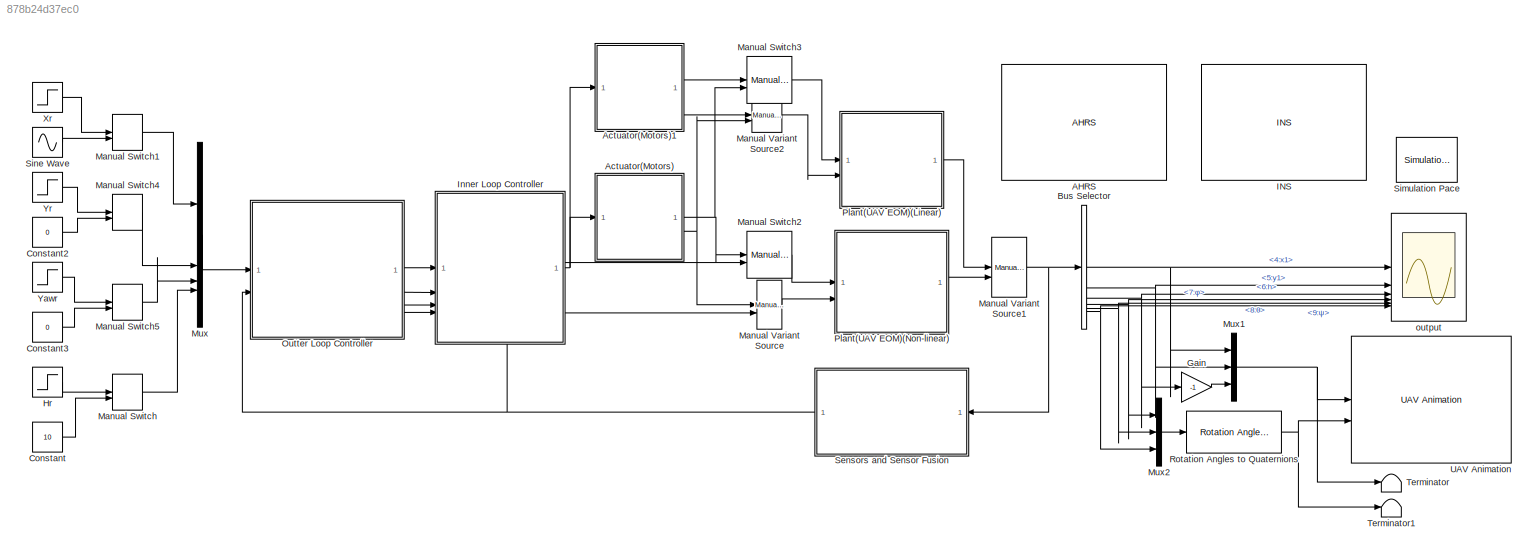
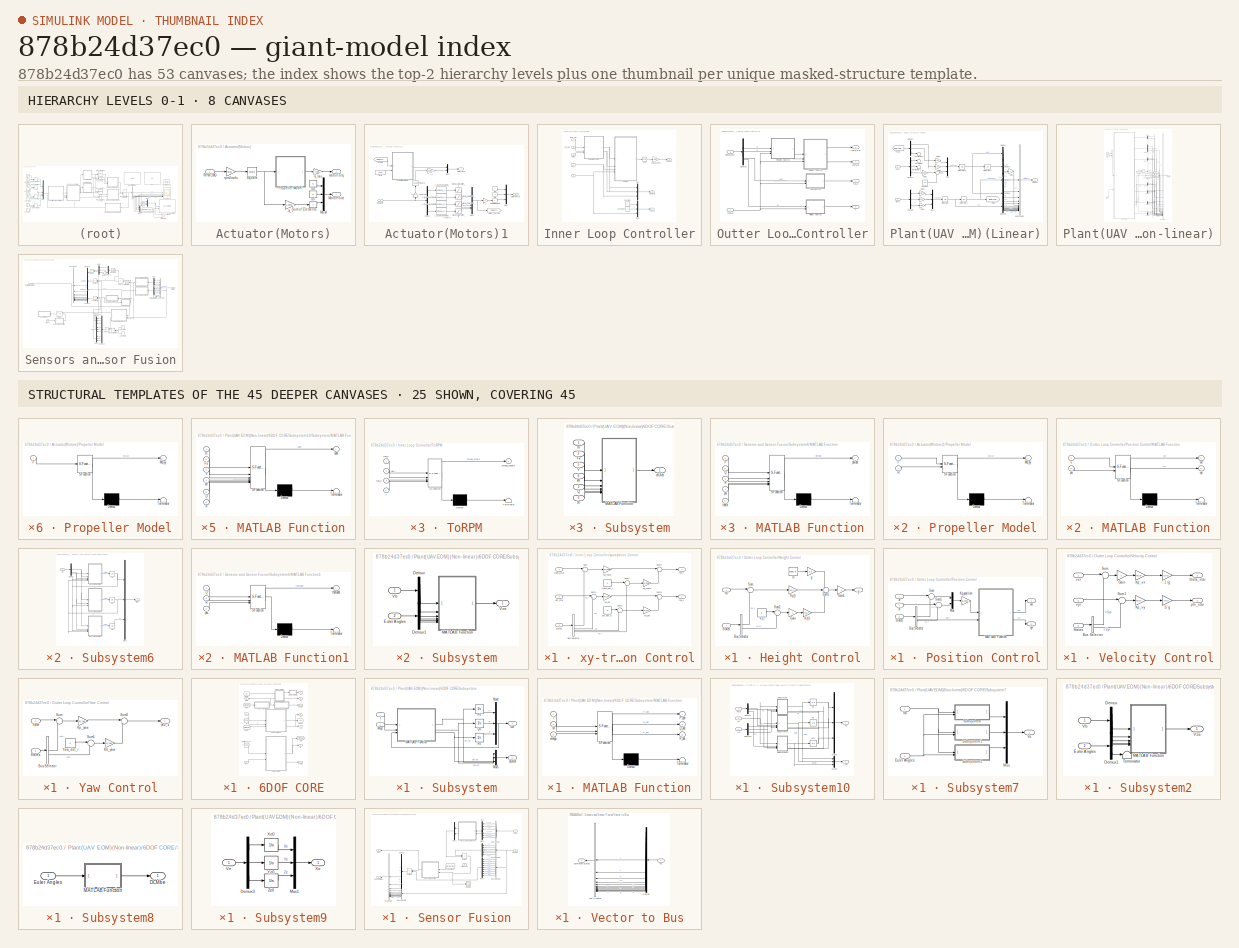
[diagram: thumbnail index - top-2 hierarchy levels (8 canvases) + 25 structural-template representatives of the remaining 45 canvases]
MODEL slx_878b24d37ec0
KIND model
CONFIG AbsTol = auto
CONFIG EnableMultiTasking = off
CONFIG FixedStep = 0.005
CONFIG MaxStep = auto
CONFIG MinStep = auto
CONFIG RelTol = 1e-3
CONFIG SampleTimeConstraint = Unconstrained
CONFIG SolverName = ode4
CONFIG StartTime = 0.0
CONFIG StopTime = 120
BLOCK [Reference] AHRS  REF=mspfiltlib/AHRS
  Commented = on
  SourceBlock = mspfiltlib/AHRS
  SourceType = fusion.simulink.ahrsfilter
BLOCK [SubSystem] Actuator(Motors)
  NameLocation = top
BLOCK [Gain] Actuator(Motors)/-k_T
  Gain = -1.097e-5
BLOCK [Constant] Actuator(Motors)/D4
  Value = 0
BLOCK [Constant] Actuator(Motors)/D5
  Value = 0
BLOCK [Outport] Actuator(Motors)/MotorForce
BLOCK [Mux] Actuator(Motors)/Mux4
  DisplayOption = bar
  Inputs = 3
BLOCK [SubSystem] Actuator(Motors)/Propeller Model
  ErrorFcn = Stateflow.Translate.translate
  PermitHierarchicalResolution = ExplicitOnly
  SFBlockType = MATLAB Function
  TreatAsAtomicUnit = on
BLOCK [Demux] Actuator(Motors)/Propeller Model/ Demux 
  Outputs = 1
BLOCK [S-Function] Actuator(Motors)/Propeller Model/ SFunction 
  EnableBusSupport = on
  FunctionName = sf_sfun
  PortCounts = [1 2]
  SFcnIsStateOwnerBlock = off
  SFunctionDeploymentMode = off
  Tag = Stateflow S-Function 7
BLOCK [Terminator] Actuator(Motors)/Propeller Model/ Terminator 
BLOCK [Inport] Actuator(Motors)/Propeller Model/F
BLOCK [Outport] Actuator(Motors)/Propeller Model/Mb_xy
BLOCK [Inport] Actuator(Motors)/RPM CMD
BLOCK [Math] Actuator(Motors)/Square
  Operator = square
BLOCK [Sum] Actuator(Motors)/Sum of Elements
  IconShape = rectangular
  Inputs = +
BLOCK [Gain] Actuator(Motors)/k_tau
  Gain = 1.779e-07
BLOCK [Outport] Actuator(Motors)/motorTorq
  Port = 2
BLOCK [Gain] Actuator(Motors)/rpm2rads
  Gain = pi/30
BLOCK [SubSystem] Actuator(Motors)1
BLOCK [Lookup_n-D] Actuator(Motors)1/1-D Lookup Table5
  BeginIndexSearchUsingPreviousIndexResult = on
  BreakpointsForDimension1 = [2847\n3689\n4585\n5400\n6400\n7000\n7800\n8222\n9300\n10700]
  InputPortMap = u0
  InternalRulePriority = Speed
  NumberOfTableDimensions = 1
  RndMeth = Simplest
  Table = [0.6664\n1.4308\n2.3422\n3.3418\n4.9098\n5.929\n7.399\n7.6244\n10.976\n13.72]
BLOCK [Lookup_n-D] Actuator(Motors)1/1-D Lookup Table6
  BeginIndexSearchUsingPreviousIndexResult = on
  BreakpointsForDimension1 = [2847\n3689\n4585\n5400\n6400\n7000\n7800\n8222\n9300\n10700]
  InputPortMap = u0
  InternalRulePriority = Speed
  NumberOfTableDimensions = 1
  RndMeth = Simplest
  Table = [0.6664\n1.4308\n2.3422\n3.3418\n4.9098\n5.929\n7.399\n7.6244\n10.976\n13.72]
BLOCK [Lookup_n-D] Actuator(Motors)1/1-D Lookup Table7
  BeginIndexSearchUsingPreviousIndexResult = on
  BreakpointsForDimension1 = [2847\n3689\n4585\n5400\n6400\n7000\n7800\n8222\n9300\n10700]
  InputPortMap = u0
  InternalRulePriority = Speed
  NumberOfTableDimensions = 1
  RndMeth = Simplest
  Table = [0.6664\n1.4308\n2.3422\n3.3418\n4.9098\n5.929\n7.399\n7.6244\n10.976\n13.72]
BLOCK [Lookup_n-D] Actuator(Motors)1/1-D Lookup Table8
  BeginIndexSearchUsingPreviousIndexResult = on
  BreakpointsForDimension1 = [2847\n3689\n4585\n5400\n6400\n7000\n7800\n8222\n9300\n10700]
  InputPortMap = u0
  InternalRulePriority = Speed
  NumberOfTableDimensions = 1
  RndMeth = Simplest
  Table = [0.6664\n1.4308\n2.3422\n3.3418\n4.9098\n5.929\n7.399\n7.6244\n10.976\n13.72]
BLOCK [Constant] Actuator(Motors)1/D4
  Value = 0
BLOCK [Constant] Actuator(Motors)1/D5
  Value = 0
BLOCK [Demux] Actuator(Motors)1/Demux
BLOCK [From] Actuator(Motors)1/From1
  GotoTag = MotorsForce
BLOCK [Outport] Actuator(Motors)1/MotorForce
BLOCK [Goto] Actuator(Motors)1/Motor_Force[4]
  GotoTag = MotorsForce
BLOCK [Mux] Actuator(Motors)1/Mux1
  DisplayOption = bar
BLOCK [Mux] Actuator(Motors)1/Mux3
  DisplayOption = bar
  Inputs = [2 1]
BLOCK [Mux] Actuator(Motors)1/Mux4
  DisplayOption = bar
  Inputs = 3
BLOCK [SubSystem] Actuator(Motors)1/Propeller Model
  ErrorFcn = Stateflow.Translate.translate
  PermitHierarchicalResolution = ExplicitOnly
  SFBlockType = MATLAB Function
  TreatAsAtomicUnit = on
BLOCK [Demux] Actuator(Motors)1/Propeller Model/ Demux 
  Outputs = 1
BLOCK [S-Function] Actuator(Motors)1/Propeller Model/ SFunction 
  EnableBusSupport = on
  FunctionName = sf_sfun
  PortCounts = [2 2]
  SFcnIsStateOwnerBlock = off
  SFunctionDeploymentMode = off
  Tag = Stateflow S-Function 5
BLOCK [Terminator] Actuator(Motors)1/Propeller Model/ Terminator 
BLOCK [Inport] Actuator(Motors)1/Propeller Model/F
BLOCK [Outport] Actuator(Motors)1/Propeller Model/Mb_xy
BLOCK [Inport] Actuator(Motors)1/Propeller Model/R
  Port = 2
BLOCK [Constant] Actuator(Motors)1/R(m)
  Value = 0.205
BLOCK [Inport] Actuator(Motors)1/RPM CMD
BLOCK [Saturate] Actuator(Motors)1/Signal_Saturation_5
  LowerLimit = 0
  UpperLimit = 1.4*9.8
BLOCK [Saturate] Actuator(Motors)1/Signal_Saturation_6
  LowerLimit = 0
  UpperLimit = 1.4*9.8
BLOCK [Saturate] Actuator(Motors)1/Signal_Saturation_7
  LowerLimit = 0
  UpperLimit = 1.4*9.8
BLOCK [Saturate] Actuator(Motors)1/Signal_Saturation_8
  LowerLimit = 0
  UpperLimit = 1.4*9.8
BLOCK [Math] Actuator(Motors)1/Square
  NameLocation = right
  Operator = square
BLOCK [Sum] Actuator(Motors)1/Sum of Elements
  IconShape = rectangular
  Inputs = +
BLOCK [Outport] Actuator(Motors)1/motorTorq
  Port = 2
BLOCK [Gain] Actuator(Motors)1/r
  Gain = -1
BLOCK [Gain] Actuator(Motors)1/r1
  Gain = 1.779e-07*[-1 -1 1 1]
  Multiplication = Matrix(K*u)
BLOCK [Gain] Actuator(Motors)1/rpm2rads
  Gain = 0.104719755119660
  NameLocation = right
BLOCK [BusSelector] Bus Selector
  OutputSignals = 4:x1,5:y1,6:h,7:φ,8:θ,9:ψ
BLOCK [Constant] Constant
  Value = 10
BLOCK [Constant] Constant2
  Value = 0
BLOCK [Constant] Constant3
  Value = 0
BLOCK [Gain] Gain
  Gain = -1
BLOCK [Step] Hr
  After = 20
  SampleTime = 0
  Time = 0
BLOCK [Reference] INS  REF=sensorinslib/INS
  Commented = on
  LibrarySourceBlock = uavsimlib/INS
  SourceBlock = sensorinslib/INS
  SourceType = fusion.internal.simulink.insSensor
BLOCK [SubSystem] Inner Loop Controller
  PortSchema = {"entries":[{"content":{"sides":[{"content":{"connectorIds":["In1","In2","In3","In4"]},"type":"ConnectorPlacement.EquallySpacedRectSide","uuid":"3024e14a-e42b-4ece-95b6-8188e577f7ea"},{"content":{"connectorIds":["Out1","Out2","Out3"],"side":"RIGHT"},"type":"ConnectorPlacement.EquallySpacedRectSide","uuid":"28791f10-00d9-435c-9b3a-62150bd300bc"},{"content":{"connectorIds":[],"side":"TOP"},"type":"C...<+421ch>
BLOCK [Constant] Inner Loop Controller/Constant
  Value = 0
BLOCK [Constant] Inner Loop Controller/Constant1
  Value = 0
BLOCK [Outport] Inner Loop Controller/Forces
  Port = 2
BLOCK [Outport] Inner Loop Controller/Moments
  Port = 3
BLOCK [Mux] Inner Loop Controller/Mux
  DisplayOption = bar
  Inputs = 3
BLOCK [Mux] Inner Loop Controller/Mux1
  DisplayOption = bar
  Inputs = 3
BLOCK [Outport] Inner Loop Controller/Rotor RPM
BLOCK [Sqrt] Inner Loop Controller/Sqrt
BLOCK [Inport] Inner Loop Controller/States
  Port = 5
BLOCK [Inport] Inner Loop Controller/T
  Port = 2
BLOCK [SubSystem] Inner Loop Controller/ToRPM
  ErrorFcn = Stateflow.Translate.translate
  PermitHierarchicalResolution = ExplicitOnly
  SFBlockType = MATLAB Function
  TreatAsAtomicUnit = on
BLOCK [Demux] Inner Loop Controller/ToRPM/ Demux 
  Outputs = 1
BLOCK [S-Function] Inner Loop Controller/ToRPM/ SFunction 
  EnableBusSupport = on
  FunctionName = sf_sfun
  PortCounts = [4 2]
  SFcnIsStateOwnerBlock = off
  SFunctionDeploymentMode = off
  Tag = Stateflow S-Function 3
BLOCK [Terminator] Inner Loop Controller/ToRPM/ Terminator 
BLOCK [Inport] Inner Loop Controller/ToRPM/T
  Port = 4
BLOCK [Outport] Inner Loop Controller/ToRPM/omega_square
BLOCK [Inport] Inner Loop Controller/ToRPM/tau_x
BLOCK [Inport] Inner Loop Controller/ToRPM/tau_y
  Port = 2
BLOCK [Inport] Inner Loop Controller/ToRPM/tau_z
  Port = 3
BLOCK [Gain] Inner Loop Controller/omega2RPM
  Gain = 30/pi
BLOCK [Inport] Inner Loop Controller/phi_star
  Port = 4
BLOCK [Inport] Inner Loop Controller/tau_z
BLOCK [Inport] Inner Loop Controller/theta_star
  Port = 3
BLOCK [SubSystem] Inner Loop Controller/xy-traslation Control
BLOCK [BusSelector] Inner Loop Controller/xy-traslation Control/Bus Selector
  OutputSignals = θ,φ,P,Q
BLOCK [Gain] Inner Loop Controller/xy-traslation Control/Kd_phi
  Gain = kd_phi
BLOCK [Gain] Inner Loop Controller/xy-traslation Control/Kd_theta
  Gain = kd_theta
BLOCK [Gain] Inner Loop Controller/xy-traslation Control/Kp_phi
  Gain = kp_phi
BLOCK [Gain] Inner Loop Controller/xy-traslation Control/Kp_theta
  Gain = kp_theta
BLOCK [Inport] Inner Loop Controller/xy-traslation Control/States
  Port = 3
BLOCK [Sum] Inner Loop Controller/xy-traslation Control/Sum
  Inputs = |+-
BLOCK [Sum] Inner Loop Controller/xy-traslation Control/Sum1
  Inputs = |+-
BLOCK [Sum] Inner Loop Controller/xy-traslation Control/Sum2
  Inputs = |+-
BLOCK [Sum] Inner Loop Controller/xy-traslation Control/Sum3
  Inputs = |+-
BLOCK [Sum] Inner Loop Controller/xy-traslation Control/Sum4
  Inputs = |++
BLOCK [Sum] Inner Loop Controller/xy-traslation Control/Sum5
  Inputs = |++
BLOCK [Constant] Inner Loop Controller/xy-traslation Control/phi_dot_r1
  Value = 0
BLOCK [Inport] Inner Loop Controller/xy-traslation Control/phi_star
  Port = 2
BLOCK [Outport] Inner Loop Controller/xy-traslation Control/tau_x
BLOCK [Outport] Inner Loop Controller/xy-traslation Control/tau_y
  Port = 2
BLOCK [Constant] Inner Loop Controller/xy-traslation Control/theta_dot_r
  Value = 0
BLOCK [Inport] Inner Loop Controller/xy-traslation Control/theta_star
BLOCK [ManualSwitch] Manual Switch
  CurrentSetting = 0
BLOCK [ManualSwitch] Manual Switch1
  CurrentSetting = 0
BLOCK [ManualSwitch] Manual Switch2
BLOCK [ManualSwitch] Manual Switch3
  CurrentSetting = 0
BLOCK [ManualSwitch] Manual Switch4
  CurrentSetting = 0
BLOCK [ManualSwitch] Manual Switch5
  CurrentSetting = 0
BLOCK [Reference] Manual Variant Source  REF=simulink/Signal
Routing/Manual
Variant Source
  SourceBlock = simulink/Signal\nRouting/Manual\nVariant Source
  SourceType = ManualVariantSource
BLOCK [Reference] Manual Variant Source1  REF=simulink/Signal
Routing/Manual
Variant Source
  SourceBlock = simulink/Signal\nRouting/Manual\nVariant Source
  SourceType = ManualVariantSource
BLOCK [Reference] Manual Variant Source2  REF=simulink/Signal
Routing/Manual
Variant Source
  SourceBlock = simulink/Signal\nRouting/Manual\nVariant Source
  SourceType = ManualVariantSource
BLOCK [Mux] Mux
  DisplayOption = bar
BLOCK [Mux] Mux1
  DisplayOption = bar
  Inputs = 3
BLOCK [Mux] Mux2
  DisplayOption = bar
  Inputs = 3
BLOCK [SubSystem] Outter Loop Controller
BLOCK [Demux] Outter Loop Controller/Demux
BLOCK [SubSystem] Outter Loop Controller/Height Control
BLOCK [BusSelector] Outter Loop Controller/Height Control/Bus Selector
  OutputSignals = H,Vz
BLOCK [Gain] Outter Loop Controller/Height Control/Gain
  Gain = -1
BLOCK [Gain] Outter Loop Controller/Height Control/Gain1
  Gain = -1
BLOCK [Inport] Outter Loop Controller/Height Control/Hr
BLOCK [Gain] Outter Loop Controller/Height Control/Kd_h
  Gain = kd_h
BLOCK [Gain] Outter Loop Controller/Height Control/Kp_h
  Gain = kp_h
BLOCK [Inport] Outter Loop Controller/Height Control/States
  Port = 2
BLOCK [Sum] Outter Loop Controller/Height Control/Sum
  Inputs = |+-
BLOCK [Sum] Outter Loop Controller/Height Control/Sum1
  Inputs = +++
BLOCK [Sum] Outter Loop Controller/Height Control/Sum2
  Inputs = |+-
BLOCK [Outport] Outter Loop Controller/Height Control/T
BLOCK [Constant] Outter Loop Controller/Height Control/Vz_r
  Value = 0
BLOCK [Gain] Outter Loop Controller/Height Control/g
  Gain = 9.8
BLOCK [Constant] Outter Loop Controller/Height Control/m
  Value = Vehicle.Airframe.mass
BLOCK [SubSystem] Outter Loop Controller/Position Control
BLOCK [BusSelector] Outter Loop Controller/Position Control/Bus Selector
  OutputSignals = X,Y,ψ
BLOCK [Gain] Outter Loop Controller/Position Control/Kp_position
  Gain = kp_position
BLOCK [SubSystem] Outter Loop Controller/Position Control/MATLAB Function
  ErrorFcn = Stateflow.Translate.translate
  PermitHierarchicalResolution = ExplicitOnly
  SFBlockType = MATLAB Function
  TreatAsAtomicUnit = on
BLOCK [Demux] Outter Loop Controller/Position Control/MATLAB Function/ Demux 
  Outputs = 1
BLOCK [S-Function] Outter Loop Controller/Position Control/MATLAB Function/ SFunction 
  EnableBusSupport = on
  FunctionName = sf_sfun
  PortCounts = [2 3]
  SFcnIsStateOwnerBlock = off
  SFunctionDeploymentMode = off
  Tag = Stateflow S-Function 1
BLOCK [Terminator] Outter Loop Controller/Position Control/MATLAB Function/ Terminator 
BLOCK [Inport] Outter Loop Controller/Position Control/MATLAB Function/psi
  Port = 2
BLOCK [Inport] Outter Loop Controller/Position Control/MATLAB Function/v
BLOCK [Outport] Outter Loop Controller/Position Control/MATLAB Function/vxr
BLOCK [Outport] Outter Loop Controller/Position Control/MATLAB Function/vyr
  Port = 2
BLOCK [Mux] Outter Loop Controller/Position Control/Mux
  DisplayOption = bar
  Inputs = 2
BLOCK [Inport] Outter Loop Controller/Position Control/States
  Port = 3
BLOCK [Sum] Outter Loop Controller/Position Control/Sum
  Inputs = |+-
BLOCK [Sum] Outter Loop Controller/Position Control/Sum1
  Inputs = |+-
BLOCK [Outport] Outter Loop Controller/Position Control/vxr
BLOCK [Outport] Outter Loop Controller/Position Control/vyr
  Port = 2
BLOCK [Inport] Outter Loop Controller/Position Control/xr
BLOCK [Inport] Outter Loop Controller/Position Control/yr
  Port = 2
BLOCK [Inport] Outter Loop Controller/Reference
BLOCK [Inport] Outter Loop Controller/States
  Port = 2
BLOCK [Outport] Outter Loop Controller/T
  Port = 2
BLOCK [SubSystem] Outter Loop Controller/Velocity Control
BLOCK [Gain] Outter Loop Controller/Velocity Control/1 //g
  Gain = 1/9.8
BLOCK [Gain] Outter Loop Controller/Velocity Control/1// g
  Gain = 1/9.8
BLOCK [BusSelector] Outter Loop Controller/Velocity Control/Bus Selector
  OutputSignals = Vx,Vy
BLOCK [Gain] Outter Loop Controller/Velocity Control/Gain
  Gain = -1
BLOCK [Gain] Outter Loop Controller/Velocity Control/Kp_vx
  Gain = kp_vx
BLOCK [Gain] Outter Loop Controller/Velocity Control/Kp_vy
  Gain = kp_vy
BLOCK [Inport] Outter Loop Controller/Velocity Control/States
  Port = 3
BLOCK [Sum] Outter Loop Controller/Velocity Control/Sum
  Inputs = |+-
BLOCK [Sum] Outter Loop Controller/Velocity Control/Sum1
  Inputs = |+-
BLOCK [Outport] Outter Loop Controller/Velocity Control/phi_star
  Port = 2
BLOCK [Outport] Outter Loop Controller/Velocity Control/theta_star
BLOCK [Inport] Outter Loop Controller/Velocity Control/vxr
BLOCK [Inport] Outter Loop Controller/Velocity Control/vyr
  Port = 2
BLOCK [SubSystem] Outter Loop Controller/Yaw Control
BLOCK [BusSelector] Outter Loop Controller/Yaw Control/Bus Selector
  OutputSignals = ψ,R
BLOCK [Gain] Outter Loop Controller/Yaw Control/Kd_yaw
  Gain = kd_yaw
BLOCK [Gain] Outter Loop Controller/Yaw Control/Kp_yaw
  Gain = kp_yaw
BLOCK [Inport] Outter Loop Controller/Yaw Control/States
  Port = 2
BLOCK [Sum] Outter Loop Controller/Yaw Control/Sum
  Inputs = |+-
BLOCK [Sum] Outter Loop Controller/Yaw Control/Sum1
  Inputs = |+-
BLOCK [Sum] Outter Loop Controller/Yaw Control/Sum2
  Inputs = |++
BLOCK [Constant] Outter Loop Controller/Yaw Control/Yaw_dot_r
  Value = 0
BLOCK [Inport] Outter Loop Controller/Yaw Control/Yawr
BLOCK [Outport] Outter Loop Controller/Yaw Control/tau_z
BLOCK [Outport] Outter Loop Controller/phi_star
  Port = 4
BLOCK [Outport] Outter Loop Controller/tau_z
BLOCK [Outport] Outter Loop Controller/theta_star
  Port = 3
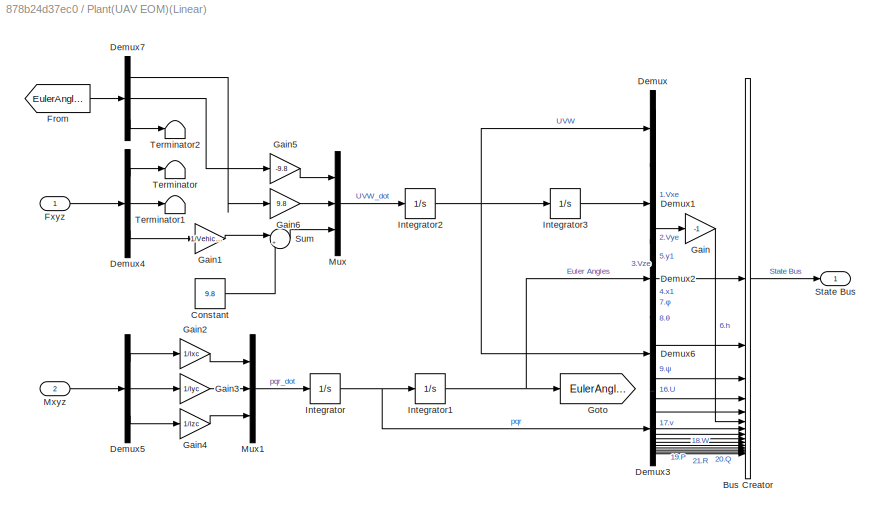
BLOCK [SubSystem] Plant(UAV EOM)(Linear)
BLOCK [BusCreator] Plant(UAV EOM)(Linear)/Bus Creator
  DisplayOption = bar
  InheritFromInputs = on
  Inputs = 15
BLOCK [Constant] Plant(UAV EOM)(Linear)/Constant
  Value = 9.8
BLOCK [Demux] Plant(UAV EOM)(Linear)/Demux
  Outputs = 3
BLOCK [Demux] Plant(UAV EOM)(Linear)/Demux1
  Outputs = 3
BLOCK [Demux] Plant(UAV EOM)(Linear)/Demux2
  Outputs = 3
BLOCK [Demux] Plant(UAV EOM)(Linear)/Demux3
  Outputs = 3
BLOCK [Demux] Plant(UAV EOM)(Linear)/Demux4
  Outputs = 3
BLOCK [Demux] Plant(UAV EOM)(Linear)/Demux5
  Outputs = 3
BLOCK [Demux] Plant(UAV EOM)(Linear)/Demux6
  Outputs = 3
BLOCK [Demux] Plant(UAV EOM)(Linear)/Demux7
  Outputs = 3
BLOCK [From] Plant(UAV EOM)(Linear)/From
  GotoTag = EulerAngles
BLOCK [Inport] Plant(UAV EOM)(Linear)/Fxyz
BLOCK [Gain] Plant(UAV EOM)(Linear)/Gain
  Gain = -1
BLOCK [Gain] Plant(UAV EOM)(Linear)/Gain1
  Gain = 1/Vehicle.Airframe.mass
BLOCK [Gain] Plant(UAV EOM)(Linear)/Gain2
  Gain = 1/Ixc
BLOCK [Gain] Plant(UAV EOM)(Linear)/Gain3
  Gain = 1/Iyc
BLOCK [Gain] Plant(UAV EOM)(Linear)/Gain4
  Gain = 1/Izc
BLOCK [Gain] Plant(UAV EOM)(Linear)/Gain5
  Gain = -9.8
BLOCK [Gain] Plant(UAV EOM)(Linear)/Gain6
  Gain = 9.8
BLOCK [Goto] Plant(UAV EOM)(Linear)/Goto
  GotoTag = EulerAngles
BLOCK [Integrator] Plant(UAV EOM)(Linear)/Integrator
  InitialCondition = [0,0,0]
BLOCK [Integrator] Plant(UAV EOM)(Linear)/Integrator1
  InitialCondition = [0,0,0]
BLOCK [Integrator] Plant(UAV EOM)(Linear)/Integrator2
  InitialCondition = [0,0,0]
BLOCK [Integrator] Plant(UAV EOM)(Linear)/Integrator3
  InitialCondition = [0,0,-10]
BLOCK [Mux] Plant(UAV EOM)(Linear)/Mux
  DisplayOption = bar
  Inputs = 3
BLOCK [Mux] Plant(UAV EOM)(Linear)/Mux1
  DisplayOption = bar
  Inputs = 3
BLOCK [Inport] Plant(UAV EOM)(Linear)/Mxyz
  Port = 2
BLOCK [Outport] Plant(UAV EOM)(Linear)/State Bus
BLOCK [Sum] Plant(UAV EOM)(Linear)/Sum
  Inputs = |++
BLOCK [Terminator] Plant(UAV EOM)(Linear)/Terminator
BLOCK [Terminator] Plant(UAV EOM)(Linear)/Terminator1
BLOCK [Terminator] Plant(UAV EOM)(Linear)/Terminator2
BLOCK [SubSystem] Plant(UAV EOM)(Non-linear)
BLOCK [SubSystem] Plant(UAV EOM)(Non-linear)/6DOF CORE
  NameLocation = top
BLOCK [Outport] Plant(UAV EOM)(Non-linear)/6DOF CORE/AAb
  Port = 8
BLOCK [Outport] Plant(UAV EOM)(Non-linear)/6DOF CORE/DCMbe
  Port = 4
BLOCK [From] Plant(UAV EOM)(Non-linear)/6DOF CORE/From
  GotoTag = omegab
BLOCK [From] Plant(UAV EOM)(Non-linear)/6DOF CORE/From2
  GotoTag = omegab
BLOCK [From] Plant(UAV EOM)(Non-linear)/6DOF CORE/From3
  GotoTag = Vb
BLOCK [Inport] Plant(UAV EOM)(Non-linear)/6DOF CORE/Fxyz
BLOCK [Goto] Plant(UAV EOM)(Non-linear)/6DOF CORE/Goto
  GotoTag = omegab
BLOCK [Goto] Plant(UAV EOM)(Non-linear)/6DOF CORE/Goto1
  GotoTag = Vb
BLOCK [Constant] Plant(UAV EOM)(Non-linear)/6DOF CORE/Inertia Tensor
  Value = Vehicle.Airframe.inertia
  VectorParams1D = off
BLOCK [Inport] Plant(UAV EOM)(Non-linear)/6DOF CORE/Mxyz
  Port = 2
BLOCK [SubSystem] Plant(UAV EOM)(Non-linear)/6DOF CORE/Subsystem
BLOCK [Inport] Plant(UAV EOM)(Non-linear)/6DOF CORE/Subsystem/I
BLOCK [SubSystem] Plant(UAV EOM)(Non-linear)/6DOF CORE/Subsystem/MATLAB Function
  ErrorFcn = Stateflow.Translate.translate
  PermitHierarchicalResolution = ExplicitOnly
  SFBlockType = MATLAB Function
  TreatAsAtomicUnit = on
BLOCK [Demux] Plant(UAV EOM)(Non-linear)/6DOF CORE/Subsystem/MATLAB Function/ Demux 
  Outputs = 1
BLOCK [S-Function] Plant(UAV EOM)(Non-linear)/6DOF CORE/Subsystem/MATLAB Function/ SFunction 
  EnableBusSupport = on
  FunctionName = sf_sfun
  PortCounts = [3 4]
  SFcnIsStateOwnerBlock = off
  SFunctionDeploymentMode = off
  Tag = Stateflow S-Function 4
BLOCK [Terminator] Plant(UAV EOM)(Non-linear)/6DOF CORE/Subsystem/MATLAB Function/ Terminator 
BLOCK [Inport] Plant(UAV EOM)(Non-linear)/6DOF CORE/Subsystem/MATLAB Function/I
BLOCK [Inport] Plant(UAV EOM)(Non-linear)/6DOF CORE/Subsystem/MATLAB Function/M
  Port = 2
BLOCK [Outport] Plant(UAV EOM)(Non-linear)/6DOF CORE/Subsystem/MATLAB Function/P_dot
BLOCK [Outport] Plant(UAV EOM)(Non-linear)/6DOF CORE/Subsystem/MATLAB Function/Q_dot
  Port = 2
BLOCK [Outport] Plant(UAV EOM)(Non-linear)/6DOF CORE/Subsystem/MATLAB Function/R_dot
  Port = 3
BLOCK [Inport] Plant(UAV EOM)(Non-linear)/6DOF CORE/Subsystem/MATLAB Function/omega
  Port = 3
BLOCK [Mux] Plant(UAV EOM)(Non-linear)/6DOF CORE/Subsystem/Mux4
  DisplayOption = bar
  Inputs = 3
BLOCK [Mux] Plant(UAV EOM)(Non-linear)/6DOF CORE/Subsystem/Mux5
  DisplayOption = bar
  Inputs = 3
BLOCK [Inport] Plant(UAV EOM)(Non-linear)/6DOF CORE/Subsystem/Mxyz
  Port = 2
BLOCK [Integrator] Plant(UAV EOM)(Non-linear)/6DOF CORE/Subsystem/P0
BLOCK [Integrator] Plant(UAV EOM)(Non-linear)/6DOF CORE/Subsystem/Q0
BLOCK [Integrator] Plant(UAV EOM)(Non-linear)/6DOF CORE/Subsystem/R0
BLOCK [Outport] Plant(UAV EOM)(Non-linear)/6DOF CORE/Subsystem/dωb//dt
  Port = 2
BLOCK [Outport] Plant(UAV EOM)(Non-linear)/6DOF CORE/Subsystem/ωb
BLOCK [SubSystem] Plant(UAV EOM)(Non-linear)/6DOF CORE/Subsystem10
BLOCK [Outport] Plant(UAV EOM)(Non-linear)/6DOF CORE/Subsystem10/AAb
  Port = 2
BLOCK [Demux] Plant(UAV EOM)(Non-linear)/6DOF CORE/Subsystem10/Demux
  Outputs = 3
BLOCK [Demux] Plant(UAV EOM)(Non-linear)/6DOF CORE/Subsystem10/Demux2
  Outputs = 3
BLOCK [Inport] Plant(UAV EOM)(Non-linear)/6DOF CORE/Subsystem10/Fxyz
BLOCK [Mux] Plant(UAV EOM)(Non-linear)/6DOF CORE/Subsystem10/Mux3
  DisplayOption = bar
  Inputs = 3
BLOCK [Mux] Plant(UAV EOM)(Non-linear)/6DOF CORE/Subsystem10/Mux6
  DisplayOption = bar
  Inputs = 3
BLOCK [SubSystem] Plant(UAV EOM)(Non-linear)/6DOF CORE/Subsystem10/Subsystem
  PortSchema = {"entries":[{"content":{"sides":[{"content":{"connectorIds":["In1","In2","In3","In4"]},"type":"ConnectorPlacement.EquallySpacedRectSide","uuid":"326daed8-e070-42c4-b922-a1cfd1075610"},{"content":{"connectorIds":["Out1","In5","In6"],"side":"RIGHT"},"type":"ConnectorPlacement.EquallySpacedRectSide","uuid":"accd66e9-544e-4c99-a98b-e3a864bc5f81"},{"content":{"connectorIds":[],"side":"TOP"},"type":"Con...<+414ch>
BLOCK [Inport] Plant(UAV EOM)(Non-linear)/6DOF CORE/Subsystem10/Subsystem/Fx
  Port = 2
BLOCK [SubSystem] Plant(UAV EOM)(Non-linear)/6DOF CORE/Subsystem10/Subsystem/MATLAB Function
  ErrorFcn = Stateflow.Translate.translate
  PermitHierarchicalResolution = ExplicitOnly
  SFBlockType = MATLAB Function
  TreatAsAtomicUnit = on
BLOCK [Demux] Plant(UAV EOM)(Non-linear)/6DOF CORE/Subsystem10/Subsystem/MATLAB Function/ Demux 
  Outputs = 1
BLOCK [S-Function] Plant(UAV EOM)(Non-linear)/6DOF CORE/Subsystem10/Subsystem/MATLAB Function/ SFunction 
  EnableBusSupport = on
  FunctionName = sf_sfun
  PortCounts = [6 2]
  SFcnIsStateOwnerBlock = off
  SFunctionDeploymentMode = off
  Tag = Stateflow S-Function 20
BLOCK [Terminator] Plant(UAV EOM)(Non-linear)/6DOF CORE/Subsystem10/Subsystem/MATLAB Function/ Terminator 
BLOCK [Inport] Plant(UAV EOM)(Non-linear)/6DOF CORE/Subsystem10/Subsystem/MATLAB Function/Fx
  Port = 2
BLOCK [Inport] Plant(UAV EOM)(Non-linear)/6DOF CORE/Subsystem10/Subsystem/MATLAB Function/Q
  Port = 5
BLOCK [Inport] Plant(UAV EOM)(Non-linear)/6DOF CORE/Subsystem10/Subsystem/MATLAB Function/R
  Port = 6
BLOCK [Inport] Plant(UAV EOM)(Non-linear)/6DOF CORE/Subsystem10/Subsystem/MATLAB Function/V
  Port = 3
BLOCK [Inport] Plant(UAV EOM)(Non-linear)/6DOF CORE/Subsystem10/Subsystem/MATLAB Function/W
  Port = 4
BLOCK [Inport] Plant(UAV EOM)(Non-linear)/6DOF CORE/Subsystem10/Subsystem/MATLAB Function/m
BLOCK [Outport] Plant(UAV EOM)(Non-linear)/6DOF CORE/Subsystem10/Subsystem/MATLAB Function/udot
BLOCK [Inport] Plant(UAV EOM)(Non-linear)/6DOF CORE/Subsystem10/Subsystem/Q
  Port = 3
BLOCK [Inport] Plant(UAV EOM)(Non-linear)/6DOF CORE/Subsystem10/Subsystem/R
  Port = 4
BLOCK [Inport] Plant(UAV EOM)(Non-linear)/6DOF CORE/Subsystem10/Subsystem/V
  Port = 5
BLOCK [Inport] Plant(UAV EOM)(Non-linear)/6DOF CORE/Subsystem10/Subsystem/W
  Port = 6
BLOCK [Outport] Plant(UAV EOM)(Non-linear)/6DOF CORE/Subsystem10/Subsystem/dU//dt
BLOCK [Inport] Plant(UAV EOM)(Non-linear)/6DOF CORE/Subsystem10/Subsystem/m
BLOCK [SubSystem] Plant(UAV EOM)(Non-linear)/6DOF CORE/Subsystem10/Subsystem1
  PortSchema = {"entries":[{"content":{"sides":[{"content":{"connectorIds":["In1","In2","In3","In4"]},"type":"ConnectorPlacement.EquallySpacedRectSide","uuid":"326daed8-e070-42c4-b922-a1cfd1075610"},{"content":{"connectorIds":["In5","Out1","In6"],"side":"RIGHT"},"type":"ConnectorPlacement.EquallySpacedRectSide","uuid":"accd66e9-544e-4c99-a98b-e3a864bc5f81"},{"content":{"connectorIds":[],"side":"TOP"},"type":"Con...<+414ch>
BLOCK [Inport] Plant(UAV EOM)(Non-linear)/6DOF CORE/Subsystem10/Subsystem1/Fy
  Port = 2
BLOCK [SubSystem] Plant(UAV EOM)(Non-linear)/6DOF CORE/Subsystem10/Subsystem1/MATLAB Function
  ErrorFcn = Stateflow.Translate.translate
  PermitHierarchicalResolution = ExplicitOnly
  SFBlockType = MATLAB Function
  TreatAsAtomicUnit = on
BLOCK [Demux] Plant(UAV EOM)(Non-linear)/6DOF CORE/Subsystem10/Subsystem1/MATLAB Function/ Demux 
  Outputs = 1
BLOCK [S-Function] Plant(UAV EOM)(Non-linear)/6DOF CORE/Subsystem10/Subsystem1/MATLAB Function/ SFunction 
  EnableBusSupport = on
  FunctionName = sf_sfun
  PortCounts = [6 2]
  SFcnIsStateOwnerBlock = off
  SFunctionDeploymentMode = off
  Tag = Stateflow S-Function 21
BLOCK [Terminator] Plant(UAV EOM)(Non-linear)/6DOF CORE/Subsystem10/Subsystem1/MATLAB Function/ Terminator 
BLOCK [Inport] Plant(UAV EOM)(Non-linear)/6DOF CORE/Subsystem10/Subsystem1/MATLAB Function/Fy
  Port = 2
BLOCK [Inport] Plant(UAV EOM)(Non-linear)/6DOF CORE/Subsystem10/Subsystem1/MATLAB Function/P
  Port = 5
BLOCK [Inport] Plant(UAV EOM)(Non-linear)/6DOF CORE/Subsystem10/Subsystem1/MATLAB Function/R
  Port = 6
BLOCK [Inport] Plant(UAV EOM)(Non-linear)/6DOF CORE/Subsystem10/Subsystem1/MATLAB Function/U
  Port = 3
BLOCK [Inport] Plant(UAV EOM)(Non-linear)/6DOF CORE/Subsystem10/Subsystem1/MATLAB Function/W
  Port = 4
BLOCK [Inport] Plant(UAV EOM)(Non-linear)/6DOF CORE/Subsystem10/Subsystem1/MATLAB Function/m
BLOCK [Outport] Plant(UAV EOM)(Non-linear)/6DOF CORE/Subsystem10/Subsystem1/MATLAB Function/vdot
BLOCK [Inport] Plant(UAV EOM)(Non-linear)/6DOF CORE/Subsystem10/Subsystem1/P
  Port = 3
BLOCK [Inport] Plant(UAV EOM)(Non-linear)/6DOF CORE/Subsystem10/Subsystem1/R
  Port = 4
BLOCK [Inport] Plant(UAV EOM)(Non-linear)/6DOF CORE/Subsystem10/Subsystem1/U
  Port = 5
BLOCK [Inport] Plant(UAV EOM)(Non-linear)/6DOF CORE/Subsystem10/Subsystem1/W
  Port = 6
BLOCK [Outport] Plant(UAV EOM)(Non-linear)/6DOF CORE/Subsystem10/Subsystem1/dV//dt
BLOCK [Inport] Plant(UAV EOM)(Non-linear)/6DOF CORE/Subsystem10/Subsystem1/m
BLOCK [SubSystem] Plant(UAV EOM)(Non-linear)/6DOF CORE/Subsystem10/Subsystem2
  PortSchema = {"entries":[{"content":{"sides":[{"content":{"connectorIds":["In1","In2","In3","In4"]},"type":"ConnectorPlacement.EquallySpacedRectSide","uuid":"326daed8-e070-42c4-b922-a1cfd1075610"},{"content":{"connectorIds":["In5","Out1","In6"],"side":"RIGHT"},"type":"ConnectorPlacement.EquallySpacedRectSide","uuid":"accd66e9-544e-4c99-a98b-e3a864bc5f81"},{"content":{"connectorIds":[],"side":"TOP"},"type":"Con...<+414ch>
BLOCK [Inport] Plant(UAV EOM)(Non-linear)/6DOF CORE/Subsystem10/Subsystem2/Fz
  Port = 2
BLOCK [SubSystem] Plant(UAV EOM)(Non-linear)/6DOF CORE/Subsystem10/Subsystem2/MATLAB Function
  ErrorFcn = Stateflow.Translate.translate
  PermitHierarchicalResolution = ExplicitOnly
  SFBlockType = MATLAB Function
  TreatAsAtomicUnit = on
BLOCK [Demux] Plant(UAV EOM)(Non-linear)/6DOF CORE/Subsystem10/Subsystem2/MATLAB Function/ Demux 
  Outputs = 1
BLOCK [S-Function] Plant(UAV EOM)(Non-linear)/6DOF CORE/Subsystem10/Subsystem2/MATLAB Function/ SFunction 
  EnableBusSupport = on
  FunctionName = sf_sfun
  PortCounts = [6 2]
  SFcnIsStateOwnerBlock = off
  SFunctionDeploymentMode = off
  Tag = Stateflow S-Function 22
BLOCK [Terminator] Plant(UAV EOM)(Non-linear)/6DOF CORE/Subsystem10/Subsystem2/MATLAB Function/ Terminator 
BLOCK [Inport] Plant(UAV EOM)(Non-linear)/6DOF CORE/Subsystem10/Subsystem2/MATLAB Function/Fz
  Port = 2
BLOCK [Inport] Plant(UAV EOM)(Non-linear)/6DOF CORE/Subsystem10/Subsystem2/MATLAB Function/P
  Port = 5
BLOCK [Inport] Plant(UAV EOM)(Non-linear)/6DOF CORE/Subsystem10/Subsystem2/MATLAB Function/Q
  Port = 6
BLOCK [Inport] Plant(UAV EOM)(Non-linear)/6DOF CORE/Subsystem10/Subsystem2/MATLAB Function/U
  Port = 3
BLOCK [Inport] Plant(UAV EOM)(Non-linear)/6DOF CORE/Subsystem10/Subsystem2/MATLAB Function/V
  Port = 4
BLOCK [Inport] Plant(UAV EOM)(Non-linear)/6DOF CORE/Subsystem10/Subsystem2/MATLAB Function/m
BLOCK [Outport] Plant(UAV EOM)(Non-linear)/6DOF CORE/Subsystem10/Subsystem2/MATLAB Function/wdot
BLOCK [Inport] Plant(UAV EOM)(Non-linear)/6DOF CORE/Subsystem10/Subsystem2/P
  Port = 3
BLOCK [Inport] Plant(UAV EOM)(Non-linear)/6DOF CORE/Subsystem10/Subsystem2/Q
  Port = 4
BLOCK [Inport] Plant(UAV EOM)(Non-linear)/6DOF CORE/Subsystem10/Subsystem2/U
  Port = 5
BLOCK [Inport] Plant(UAV EOM)(Non-linear)/6DOF CORE/Subsystem10/Subsystem2/V
  Port = 6
BLOCK [Outport] Plant(UAV EOM)(Non-linear)/6DOF CORE/Subsystem10/Subsystem2/dW//dt
BLOCK [Inport] Plant(UAV EOM)(Non-linear)/6DOF CORE/Subsystem10/Subsystem2/m
BLOCK [Integrator] Plant(UAV EOM)(Non-linear)/6DOF CORE/Subsystem10/U0
BLOCK [Integrator] Plant(UAV EOM)(Non-linear)/6DOF CORE/Subsystem10/V0
BLOCK [Outport] Plant(UAV EOM)(Non-linear)/6DOF CORE/Subsystem10/Vb
BLOCK [Integrator] Plant(UAV EOM)(Non-linear)/6DOF CORE/Subsystem10/W0
BLOCK [Inport] Plant(UAV EOM)(Non-linear)/6DOF CORE/Subsystem10/m
  Port = 2
BLOCK [Inport] Plant(UAV EOM)(Non-linear)/6DOF CORE/Subsystem10/ωb
  Port = 3
BLOCK [SubSystem] Plant(UAV EOM)(Non-linear)/6DOF CORE/Subsystem6
BLOCK [Demux] Plant(UAV EOM)(Non-linear)/6DOF CORE/Subsystem6/Demux
  Outputs = 3
BLOCK [SubSystem] Plant(UAV EOM)(Non-linear)/6DOF CORE/Subsystem6/MATLAB Function
  ErrorFcn = Stateflow.Translate.translate
  PermitHierarchicalResolution = ExplicitOnly
  SFBlockType = MATLAB Function
  TreatAsAtomicUnit = on
BLOCK [Demux] Plant(UAV EOM)(Non-linear)/6DOF CORE/Subsystem6/MATLAB Function/ Demux 
  Outputs = 1
BLOCK [S-Function] Plant(UAV EOM)(Non-linear)/6DOF CORE/Subsystem6/MATLAB Function/ SFunction 
  EnableBusSupport = on
  FunctionName = sf_sfun
  PortCounts = [5 2]
  SFcnIsStateOwnerBlock = off
  SFunctionDeploymentMode = off
  Tag = Stateflow S-Function 23
BLOCK [Terminator] Plant(UAV EOM)(Non-linear)/6DOF CORE/Subsystem6/MATLAB Function/ Terminator 
BLOCK [Inport] Plant(UAV EOM)(Non-linear)/6DOF CORE/Subsystem6/MATLAB Function/P
BLOCK [Inport] Plant(UAV EOM)(Non-linear)/6DOF CORE/Subsystem6/MATLAB Function/Q
  Port = 2
BLOCK [Inport] Plant(UAV EOM)(Non-linear)/6DOF CORE/Subsystem6/MATLAB Function/R
  Port = 3
BLOCK [Inport] Plant(UAV EOM)(Non-linear)/6DOF CORE/Subsystem6/MATLAB Function/phi
  Port = 4
BLOCK [Outport] Plant(UAV EOM)(Non-linear)/6DOF CORE/Subsystem6/MATLAB Function/phidot
BLOCK [Inport] Plant(UAV EOM)(Non-linear)/6DOF CORE/Subsystem6/MATLAB Function/theta
  Port = 5
BLOCK [SubSystem] Plant(UAV EOM)(Non-linear)/6DOF CORE/Subsystem6/MATLAB Function1
  ErrorFcn = Stateflow.Translate.translate
  PermitHierarchicalResolution = ExplicitOnly
  SFBlockType = MATLAB Function
  TreatAsAtomicUnit = on
BLOCK [Demux] Plant(UAV EOM)(Non-linear)/6DOF CORE/Subsystem6/MATLAB Function1/ Demux 
  Outputs = 1
BLOCK [S-Function] Plant(UAV EOM)(Non-linear)/6DOF CORE/Subsystem6/MATLAB Function1/ SFunction 
  EnableBusSupport = on
  FunctionName = sf_sfun
  PortCounts = [3 2]
  SFcnIsStateOwnerBlock = off
  SFunctionDeploymentMode = off
  Tag = Stateflow S-Function 24
BLOCK [Terminator] Plant(UAV EOM)(Non-linear)/6DOF CORE/Subsystem6/MATLAB Function1/ Terminator 
BLOCK [Inport] Plant(UAV EOM)(Non-linear)/6DOF CORE/Subsystem6/MATLAB Function1/Q
BLOCK [Inport] Plant(UAV EOM)(Non-linear)/6DOF CORE/Subsystem6/MATLAB Function1/R
  Port = 2
BLOCK [Inport] Plant(UAV EOM)(Non-linear)/6DOF CORE/Subsystem6/MATLAB Function1/phi
  Port = 3
BLOCK [Outport] Plant(UAV EOM)(Non-linear)/6DOF CORE/Subsystem6/MATLAB Function1/thetadot
BLOCK [SubSystem] Plant(UAV EOM)(Non-linear)/6DOF CORE/Subsystem6/MATLAB Function2
  ErrorFcn = Stateflow.Translate.translate
  PermitHierarchicalResolution = ExplicitOnly
  SFBlockType = MATLAB Function
  TreatAsAtomicUnit = on
BLOCK [Demux] Plant(UAV EOM)(Non-linear)/6DOF CORE/Subsystem6/MATLAB Function2/ Demux 
  Outputs = 1
BLOCK [S-Function] Plant(UAV EOM)(Non-linear)/6DOF CORE/Subsystem6/MATLAB Function2/ SFunction 
  EnableBusSupport = on
  FunctionName = sf_sfun
  PortCounts = [4 2]
  SFcnIsStateOwnerBlock = off
  SFunctionDeploymentMode = off
  Tag = Stateflow S-Function 25
BLOCK [Terminator] Plant(UAV EOM)(Non-linear)/6DOF CORE/Subsystem6/MATLAB Function2/ Terminator 
BLOCK [Inport] Plant(UAV EOM)(Non-linear)/6DOF CORE/Subsystem6/MATLAB Function2/Q
BLOCK [Inport] Plant(UAV EOM)(Non-linear)/6DOF CORE/Subsystem6/MATLAB Function2/R
  Port = 2
BLOCK [Inport] Plant(UAV EOM)(Non-linear)/6DOF CORE/Subsystem6/MATLAB Function2/phi
  Port = 3
BLOCK [Outport] Plant(UAV EOM)(Non-linear)/6DOF CORE/Subsystem6/MATLAB Function2/pusaidot
BLOCK [Inport] Plant(UAV EOM)(Non-linear)/6DOF CORE/Subsystem6/MATLAB Function2/theta
  Port = 4
BLOCK [Mux] Plant(UAV EOM)(Non-linear)/6DOF CORE/Subsystem6/Mux1
  DisplayOption = bar
  Inputs = 3
BLOCK [Outport] Plant(UAV EOM)(Non-linear)/6DOF CORE/Subsystem6/ΦΘΨ
BLOCK [Integrator] Plant(UAV EOM)(Non-linear)/6DOF CORE/Subsystem6/θ0
BLOCK [Integrator] Plant(UAV EOM)(Non-linear)/6DOF CORE/Subsystem6/φ0
BLOCK [Integrator] Plant(UAV EOM)(Non-linear)/6DOF CORE/Subsystem6/ψ0
BLOCK [Inport] Plant(UAV EOM)(Non-linear)/6DOF CORE/Subsystem6/ωb
BLOCK [SubSystem] Plant(UAV EOM)(Non-linear)/6DOF CORE/Subsystem7
  NameLocation = left
  PortSchema = {"entries":[{"content":{"sides":[{"content":{"connectorIds":[]},"type":"ConnectorPlacement.EquallySpacedRectSide","uuid":"1bd4c84a-8e3a-484f-b157-4fc2072173e9"},{"content":{"connectorIds":[],"side":"RIGHT"},"type":"ConnectorPlacement.EquallySpacedRectSide","uuid":"5d02806b-ecd1-4a3d-b653-3060473a0baf"},{"content":{"connectorIds":["Out1"],"side":"TOP"},"type":"ConnectorPlacement.EquallySpacedRectSi...<+534ch>
BLOCK [Inport] Plant(UAV EOM)(Non-linear)/6DOF CORE/Subsystem7/Euler Angles
  Port = 2
BLOCK [Mux] Plant(UAV EOM)(Non-linear)/6DOF CORE/Subsystem7/Mux
  DisplayOption = bar
  Inputs = 3
BLOCK [SubSystem] Plant(UAV EOM)(Non-linear)/6DOF CORE/Subsystem7/Subsystem
BLOCK [Demux] Plant(UAV EOM)(Non-linear)/6DOF CORE/Subsystem7/Subsystem/Demux
  Outputs = 3
BLOCK [Demux] Plant(UAV EOM)(Non-linear)/6DOF CORE/Subsystem7/Subsystem/Demux1
  Outputs = 3
BLOCK [Inport] Plant(UAV EOM)(Non-linear)/6DOF CORE/Subsystem7/Subsystem/Euler Angles
  Port = 2
BLOCK [SubSystem] Plant(UAV EOM)(Non-linear)/6DOF CORE/Subsystem7/Subsystem/MATLAB Function
  ErrorFcn = Stateflow.Translate.translate
  PermitHierarchicalResolution = ExplicitOnly
  SFBlockType = MATLAB Function
  TreatAsAtomicUnit = on
BLOCK [Demux] Plant(UAV EOM)(Non-linear)/6DOF CORE/Subsystem7/Subsystem/MATLAB Function/ Demux 
  Outputs = 1
BLOCK [S-Function] Plant(UAV EOM)(Non-linear)/6DOF CORE/Subsystem7/Subsystem/MATLAB Function/ SFunction 
  EnableBusSupport = on
  FunctionName = sf_sfun
  PortCounts = [6 2]
  SFcnIsStateOwnerBlock = off
  SFunctionDeploymentMode = off
  Tag = Stateflow S-Function 26
BLOCK [Terminator] Plant(UAV EOM)(Non-linear)/6DOF CORE/Subsystem7/Subsystem/MATLAB Function/ Terminator 
BLOCK [Inport] Plant(UAV EOM)(Non-linear)/6DOF CORE/Subsystem7/Subsystem/MATLAB Function/U
BLOCK [Inport] Plant(UAV EOM)(Non-linear)/6DOF CORE/Subsystem7/Subsystem/MATLAB Function/V
  Port = 2
BLOCK [Outport] Plant(UAV EOM)(Non-linear)/6DOF CORE/Subsystem7/Subsystem/MATLAB Function/Vxe
BLOCK [Inport] Plant(UAV EOM)(Non-linear)/6DOF CORE/Subsystem7/Subsystem/MATLAB Function/W
  Port = 3
BLOCK [Inport] Plant(UAV EOM)(Non-linear)/6DOF CORE/Subsystem7/Subsystem/MATLAB Function/phi
  Port = 4
BLOCK [Inport] Plant(UAV EOM)(Non-linear)/6DOF CORE/Subsystem7/Subsystem/MATLAB Function/pusai
  Port = 6
BLOCK [Inport] Plant(UAV EOM)(Non-linear)/6DOF CORE/Subsystem7/Subsystem/MATLAB Function/theta
  Port = 5
BLOCK [Inport] Plant(UAV EOM)(Non-linear)/6DOF CORE/Subsystem7/Subsystem/Vb
BLOCK [Outport] Plant(UAV EOM)(Non-linear)/6DOF CORE/Subsystem7/Subsystem/Vxe
BLOCK [SubSystem] Plant(UAV EOM)(Non-linear)/6DOF CORE/Subsystem7/Subsystem1
BLOCK [Demux] Plant(UAV EOM)(Non-linear)/6DOF CORE/Subsystem7/Subsystem1/Demux
  Outputs = 3
BLOCK [Demux] Plant(UAV EOM)(Non-linear)/6DOF CORE/Subsystem7/Subsystem1/Demux1
  Outputs = 3
BLOCK [Inport] Plant(UAV EOM)(Non-linear)/6DOF CORE/Subsystem7/Subsystem1/Euler Angles
  Port = 2
BLOCK [SubSystem] Plant(UAV EOM)(Non-linear)/6DOF CORE/Subsystem7/Subsystem1/MATLAB Function
  ErrorFcn = Stateflow.Translate.translate
  PermitHierarchicalResolution = ExplicitOnly
  SFBlockType = MATLAB Function
  TreatAsAtomicUnit = on
BLOCK [Demux] Plant(UAV EOM)(Non-linear)/6DOF CORE/Subsystem7/Subsystem1/MATLAB Function/ Demux 
  Outputs = 1
BLOCK [S-Function] Plant(UAV EOM)(Non-linear)/6DOF CORE/Subsystem7/Subsystem1/MATLAB Function/ SFunction 
  EnableBusSupport = on
  FunctionName = sf_sfun
  PortCounts = [6 2]
  SFcnIsStateOwnerBlock = off
  SFunctionDeploymentMode = off
  Tag = Stateflow S-Function 27
BLOCK [Terminator] Plant(UAV EOM)(Non-linear)/6DOF CORE/Subsystem7/Subsystem1/MATLAB Function/ Terminator 
BLOCK [Inport] Plant(UAV EOM)(Non-linear)/6DOF CORE/Subsystem7/Subsystem1/MATLAB Function/U
BLOCK [Inport] Plant(UAV EOM)(Non-linear)/6DOF CORE/Subsystem7/Subsystem1/MATLAB Function/V
  Port = 2
BLOCK [Outport] Plant(UAV EOM)(Non-linear)/6DOF CORE/Subsystem7/Subsystem1/MATLAB Function/Vye
BLOCK [Inport] Plant(UAV EOM)(Non-linear)/6DOF CORE/Subsystem7/Subsystem1/MATLAB Function/W
  Port = 3
BLOCK [Inport] Plant(UAV EOM)(Non-linear)/6DOF CORE/Subsystem7/Subsystem1/MATLAB Function/phi
  Port = 4
BLOCK [Inport] Plant(UAV EOM)(Non-linear)/6DOF CORE/Subsystem7/Subsystem1/MATLAB Function/pusai
  Port = 6
BLOCK [Inport] Plant(UAV EOM)(Non-linear)/6DOF CORE/Subsystem7/Subsystem1/MATLAB Function/theta
  Port = 5
BLOCK [Inport] Plant(UAV EOM)(Non-linear)/6DOF CORE/Subsystem7/Subsystem1/Vb
BLOCK [Outport] Plant(UAV EOM)(Non-linear)/6DOF CORE/Subsystem7/Subsystem1/Vye
BLOCK [SubSystem] Plant(UAV EOM)(Non-linear)/6DOF CORE/Subsystem7/Subsystem2
BLOCK [Demux] Plant(UAV EOM)(Non-linear)/6DOF CORE/Subsystem7/Subsystem2/Demux
  Outputs = 3
BLOCK [Demux] Plant(UAV EOM)(Non-linear)/6DOF CORE/Subsystem7/Subsystem2/Demux1
  Outputs = 3
BLOCK [Inport] Plant(UAV EOM)(Non-linear)/6DOF CORE/Subsystem7/Subsystem2/Euler Angles
  Port = 2
BLOCK [SubSystem] Plant(UAV EOM)(Non-linear)/6DOF CORE/Subsystem7/Subsystem2/MATLAB Function
  ErrorFcn = Stateflow.Translate.translate
  PermitHierarchicalResolution = ExplicitOnly
  SFBlockType = MATLAB Function
  TreatAsAtomicUnit = on
BLOCK [Demux] Plant(UAV EOM)(Non-linear)/6DOF CORE/Subsystem7/Subsystem2/MATLAB Function/ Demux 
  Outputs = 1
BLOCK [S-Function] Plant(UAV EOM)(Non-linear)/6DOF CORE/Subsystem7/Subsystem2/MATLAB Function/ SFunction 
  EnableBusSupport = on
  FunctionName = sf_sfun
  PortCounts = [5 2]
  SFcnIsStateOwnerBlock = off
  SFunctionDeploymentMode = off
  Tag = Stateflow S-Function 28
BLOCK [Terminator] Plant(UAV EOM)(Non-linear)/6DOF CORE/Subsystem7/Subsystem2/MATLAB Function/ Terminator 
BLOCK [Inport] Plant(UAV EOM)(Non-linear)/6DOF CORE/Subsystem7/Subsystem2/MATLAB Function/U
BLOCK [Inport] Plant(UAV EOM)(Non-linear)/6DOF CORE/Subsystem7/Subsystem2/MATLAB Function/V
  Port = 2
BLOCK [Outport] Plant(UAV EOM)(Non-linear)/6DOF CORE/Subsystem7/Subsystem2/MATLAB Function/Vze
BLOCK [Inport] Plant(UAV EOM)(Non-linear)/6DOF CORE/Subsystem7/Subsystem2/MATLAB Function/W
  Port = 3
BLOCK [Inport] Plant(UAV EOM)(Non-linear)/6DOF CORE/Subsystem7/Subsystem2/MATLAB Function/phi
  Port = 4
BLOCK [Inport] Plant(UAV EOM)(Non-linear)/6DOF CORE/Subsystem7/Subsystem2/MATLAB Function/theta
  Port = 5
BLOCK [Terminator] Plant(UAV EOM)(Non-linear)/6DOF CORE/Subsystem7/Subsystem2/Terminator
BLOCK [Inport] Plant(UAV EOM)(Non-linear)/6DOF CORE/Subsystem7/Subsystem2/Vb
BLOCK [Outport] Plant(UAV EOM)(Non-linear)/6DOF CORE/Subsystem7/Subsystem2/Vze
BLOCK [Inport] Plant(UAV EOM)(Non-linear)/6DOF CORE/Subsystem7/Vb
BLOCK [Outport] Plant(UAV EOM)(Non-linear)/6DOF CORE/Subsystem7/Ve
BLOCK [SubSystem] Plant(UAV EOM)(Non-linear)/6DOF CORE/Subsystem8
BLOCK [Outport] Plant(UAV EOM)(Non-linear)/6DOF CORE/Subsystem8/DCMbe
BLOCK [Inport] Plant(UAV EOM)(Non-linear)/6DOF CORE/Subsystem8/Euler Angles
BLOCK [SubSystem] Plant(UAV EOM)(Non-linear)/6DOF CORE/Subsystem8/MATLAB Function
  ErrorFcn = Stateflow.Translate.translate
  PermitHierarchicalResolution = ExplicitOnly
  SFBlockType = MATLAB Function
  TreatAsAtomicUnit = on
BLOCK [Demux] Plant(UAV EOM)(Non-linear)/6DOF CORE/Subsystem8/MATLAB Function/ Demux 
  Outputs = 1
BLOCK [S-Function] Plant(UAV EOM)(Non-linear)/6DOF CORE/Subsystem8/MATLAB Function/ SFunction 
  EnableBusSupport = on
  FunctionName = sf_sfun
  PortCounts = [1 2]
  SFcnIsStateOwnerBlock = off
  SFunctionDeploymentMode = off
  Tag = Stateflow S-Function 2
BLOCK [Terminator] Plant(UAV EOM)(Non-linear)/6DOF CORE/Subsystem8/MATLAB Function/ Terminator 
BLOCK [Inport] Plant(UAV EOM)(Non-linear)/6DOF CORE/Subsystem8/MATLAB Function/u
BLOCK [Outport] Plant(UAV EOM)(Non-linear)/6DOF CORE/Subsystem8/MATLAB Function/y
BLOCK [SubSystem] Plant(UAV EOM)(Non-linear)/6DOF CORE/Subsystem9
BLOCK [Demux] Plant(UAV EOM)(Non-linear)/6DOF CORE/Subsystem9/Demux3
  Outputs = 3
BLOCK [Mux] Plant(UAV EOM)(Non-linear)/6DOF CORE/Subsystem9/Mux1
  DisplayOption = bar
  Inputs = 3
BLOCK [Inport] Plant(UAV EOM)(Non-linear)/6DOF CORE/Subsystem9/Ve
BLOCK [Outport] Plant(UAV EOM)(Non-linear)/6DOF CORE/Subsystem9/Xe
BLOCK [Integrator] Plant(UAV EOM)(Non-linear)/6DOF CORE/Subsystem9/Xe0
  NameLocation = top
BLOCK [Integrator] Plant(UAV EOM)(Non-linear)/6DOF CORE/Subsystem9/Ye0
BLOCK [Integrator] Plant(UAV EOM)(Non-linear)/6DOF CORE/Subsystem9/Ze0
  InitialCondition = -10
BLOCK [Outport] Plant(UAV EOM)(Non-linear)/6DOF CORE/Vb
  Port = 5
BLOCK [Outport] Plant(UAV EOM)(Non-linear)/6DOF CORE/Ve
BLOCK [Outport] Plant(UAV EOM)(Non-linear)/6DOF CORE/Xe
  Port = 2
BLOCK [Outport] Plant(UAV EOM)(Non-linear)/6DOF CORE/dωb//dt
  Port = 7
BLOCK [Constant] Plant(UAV EOM)(Non-linear)/6DOF CORE/m
  Value = Vehicle.Airframe.mass
BLOCK [Outport] Plant(UAV EOM)(Non-linear)/6DOF CORE/ΦΘΨ
  Port = 3
BLOCK [Outport] Plant(UAV EOM)(Non-linear)/6DOF CORE/ωb
  Port = 6
BLOCK [Sum] Plant(UAV EOM)(Non-linear)/Add
  IconShape = rectangular
BLOCK [Reference] Plant(UAV EOM)(Non-linear)/Angle Conversion1  REF=aerolibconvert2/Angle Conversion
  SourceBlock = aerolibconvert2/Angle Conversion
  SourceType = Angle Conversion
BLOCK [Reference] Plant(UAV EOM)(Non-linear)/Angle Conversion2  REF=aerolibconvert2/Angle Conversion
  SourceBlock = aerolibconvert2/Angle Conversion
  SourceType = Angle Conversion
BLOCK [BusCreator] Plant(UAV EOM)(Non-linear)/Bus Creator
  DisplayOption = bar
  InheritFromInputs = on
  Inputs = 25
BLOCK [Demux] Plant(UAV EOM)(Non-linear)/Demux
  Outputs = 3
BLOCK [Demux] Plant(UAV EOM)(Non-linear)/Demux1
  Outputs = 3
BLOCK [Demux] Plant(UAV EOM)(Non-linear)/Demux2
  Outputs = 3
BLOCK [Demux] Plant(UAV EOM)(Non-linear)/Demux3
  Outputs = 3
BLOCK [Demux] Plant(UAV EOM)(Non-linear)/Demux4
  Outputs = 3
BLOCK [Demux] Plant(UAV EOM)(Non-linear)/Demux5
  Outputs = 3
BLOCK [Demux] Plant(UAV EOM)(Non-linear)/Demux6
  Outputs = 3
BLOCK [From] Plant(UAV EOM)(Non-linear)/From
  GotoTag = G
BLOCK [Inport] Plant(UAV EOM)(Non-linear)/Fxyz
BLOCK [Gain] Plant(UAV EOM)(Non-linear)/Gain
  Gain = -1
BLOCK [Goto] Plant(UAV EOM)(Non-linear)/Goto
  GotoTag = G
BLOCK [Reference] Plant(UAV EOM)(Non-linear)/Incidence, Sideslip, & Airspeed  REF=aerolibasang/Incidence, Sideslip,
& Airspeed
  SourceBlock = aerolibasang/Incidence, Sideslip,\n& Airspeed
  SourceType = Incidence,Sideslip,&Airspeed
BLOCK [Inport] Plant(UAV EOM)(Non-linear)/Mxyz
  Port = 2
BLOCK [Product] Plant(UAV EOM)(Non-linear)/Product
  Multiplication = Matrix(*)
BLOCK [Outport] Plant(UAV EOM)(Non-linear)/State Bus
BLOCK [Constant] Plant(UAV EOM)(Non-linear)/Weight
  Value = [0;0;Vehicle.Airframe.mass*9.8]
  VectorParams1D = off
BLOCK [Reference] Rotation Angles to Quaternions  REF=sharedtransform/Rotation Angles to Quaternions
  AttributesFormatString = Rotation Order: %<rotationOrder>
  LibrarySourceBlock = aerolibtransform2/Rotation Angles to Quaternions
  SourceBlock = sharedtransform/Rotation Angles to Quaternions
  SourceType = Ang2Quat
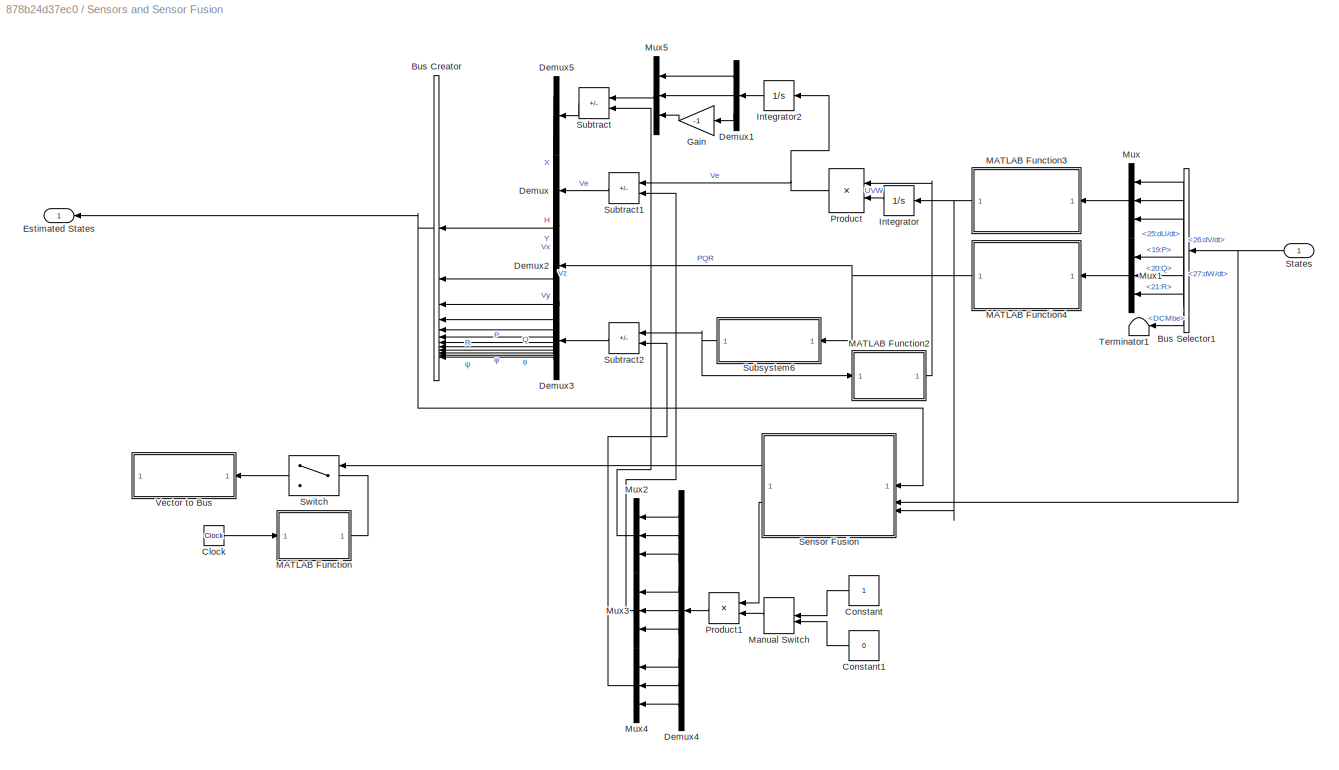
BLOCK [SubSystem] Sensors and Sensor Fusion
  NameLocation = top
BLOCK [BusCreator] Sensors and Sensor Fusion/Bus Creator
  DisplayOption = bar
  InheritFromInputs = on
  Inputs = 12
  NameLocation = top
BLOCK [BusSelector] Sensors and Sensor Fusion/Bus Selector1
  NameLocation = top
  OutputSignals = 25:dU/dt,26:dV/dt,27:dW/dt,19:P,20:Q,21:R,DCMbe
BLOCK [Clock] Sensors and Sensor Fusion/Clock
  Commented = on
BLOCK [Constant] Sensors and Sensor Fusion/Constant
  NameLocation = top
BLOCK [Constant] Sensors and Sensor Fusion/Constant1
  NameLocation = top
  Value = 0
BLOCK [Demux] Sensors and Sensor Fusion/Demux
  NameLocation = top
  Outputs = 3
BLOCK [Demux] Sensors and Sensor Fusion/Demux1
  NameLocation = top
  Outputs = 3
BLOCK [Demux] Sensors and Sensor Fusion/Demux2
  NameLocation = top
  Outputs = 3
BLOCK [Demux] Sensors and Sensor Fusion/Demux3
  NameLocation = top
  Outputs = 3
BLOCK [Demux] Sensors and Sensor Fusion/Demux4
  NameLocation = top
  Outputs = 9
BLOCK [Demux] Sensors and Sensor Fusion/Demux5
  NameLocation = top
  Outputs = 3
BLOCK [Outport] Sensors and Sensor Fusion/Estimated States
  NameLocation = top
BLOCK [Gain] Sensors and Sensor Fusion/Gain
  Gain = -1
  NameLocation = top
BLOCK [Integrator] Sensors and Sensor Fusion/Integrator
  NameLocation = top
BLOCK [Integrator] Sensors and Sensor Fusion/Integrator2
  InitialCondition = [0;0;-10]
  NameLocation = top
BLOCK [SubSystem] Sensors and Sensor Fusion/MATLAB Function
  Commented = on
  ErrorFcn = Stateflow.Translate.translate
  LibrarySourceBlock = simulink/User-Defined\nFunctions/MATLAB Function
  PermitHierarchicalResolution = ExplicitOnly
  SFBlockType = MATLAB Function
  TreatAsAtomicUnit = on
BLOCK [Demux] Sensors and Sensor Fusion/MATLAB Function/ Demux 
  Outputs = 1
BLOCK [S-Function] Sensors and Sensor Fusion/MATLAB Function/ SFunction 
  EnableBusSupport = on
  FunctionName = sf_sfun
  PortCounts = [1 2]
  SFcnIsStateOwnerBlock = off
  SFunctionDeploymentMode = off
  Tag = Stateflow S-Function 6
BLOCK [Terminator] Sensors and Sensor Fusion/MATLAB Function/ Terminator 
BLOCK [Inport] Sensors and Sensor Fusion/MATLAB Function/t
BLOCK [Outport] Sensors and Sensor Fusion/MATLAB Function/y
BLOCK [SubSystem] Sensors and Sensor Fusion/MATLAB Function2
  ErrorFcn = Stateflow.Translate.translate
  PermitHierarchicalResolution = ExplicitOnly
  SFBlockType = MATLAB Function
  TreatAsAtomicUnit = on
BLOCK [Demux] Sensors and Sensor Fusion/MATLAB Function2/ Demux 
  Outputs = 1
BLOCK [S-Function] Sensors and Sensor Fusion/MATLAB Function2/ SFunction 
  EnableBusSupport = on
  FunctionName = sf_sfun
  PortCounts = [1 2]
  SFcnIsStateOwnerBlock = off
  SFunctionDeploymentMode = off
  Tag = Stateflow S-Function 12
BLOCK [Terminator] Sensors and Sensor Fusion/MATLAB Function2/ Terminator 
BLOCK [Inport] Sensors and Sensor Fusion/MATLAB Function2/u
BLOCK [Outport] Sensors and Sensor Fusion/MATLAB Function2/y
BLOCK [SubSystem] Sensors and Sensor Fusion/MATLAB Function3
  ErrorFcn = Stateflow.Translate.translate
  LibrarySourceBlock = simulink/User-Defined\nFunctions/MATLAB Function
  NameLocation = top
  PermitHierarchicalResolution = ExplicitOnly
  SFBlockType = MATLAB Function
  SystemSampleTime = 1/200
  TreatAsAtomicUnit = on
BLOCK [Demux] Sensors and Sensor Fusion/MATLAB Function3/ Demux 
  Outputs = 1
BLOCK [S-Function] Sensors and Sensor Fusion/MATLAB Function3/ SFunction 
  EnableBusSupport = on
  FunctionName = sf_sfun
  PortCounts = [1 2]
  SFcnIsStateOwnerBlock = off
  SFunctionDeploymentMode = off
  Tag = Stateflow S-Function 15
BLOCK [Terminator] Sensors and Sensor Fusion/MATLAB Function3/ Terminator 
BLOCK [Outport] Sensors and Sensor Fusion/MATLAB Function3/Acce
BLOCK [Inport] Sensors and Sensor Fusion/MATLAB Function3/a
BLOCK [SubSystem] Sensors and Sensor Fusion/MATLAB Function4
  ErrorFcn = Stateflow.Translate.translate
  LibrarySourceBlock = simulink/User-Defined\nFunctions/MATLAB Function
  NameLocation = top
  PermitHierarchicalResolution = ExplicitOnly
  SFBlockType = MATLAB Function
  SystemSampleTime = 0.005
  TreatAsAtomicUnit = on
BLOCK [Demux] Sensors and Sensor Fusion/MATLAB Function4/ Demux 
  Outputs = 1
BLOCK [S-Function] Sensors and Sensor Fusion/MATLAB Function4/ SFunction 
  EnableBusSupport = on
  FunctionName = sf_sfun
  PortCounts = [1 2]
  SFcnIsStateOwnerBlock = off
  SFunctionDeploymentMode = off
  Tag = Stateflow S-Function 16
BLOCK [Terminator] Sensors and Sensor Fusion/MATLAB Function4/ Terminator 
BLOCK [Outport] Sensors and Sensor Fusion/MATLAB Function4/Gyro
BLOCK [Inport] Sensors and Sensor Fusion/MATLAB Function4/Omega
BLOCK [ManualSwitch] Sensors and Sensor Fusion/Manual Switch
  NameLocation = top
BLOCK [Mux] Sensors and Sensor Fusion/Mux
  DisplayOption = bar
  Inputs = 3
  NameLocation = top
BLOCK [Mux] Sensors and Sensor Fusion/Mux1
  DisplayOption = bar
  Inputs = 3
  NameLocation = top
BLOCK [Mux] Sensors and Sensor Fusion/Mux2
  DisplayOption = bar
  Inputs = 3
  NameLocation = top
BLOCK [Mux] Sensors and Sensor Fusion/Mux3
  DisplayOption = bar
  Inputs = 3
  NameLocation = top
BLOCK [Mux] Sensors and Sensor Fusion/Mux4
  DisplayOption = bar
  Inputs = 3
  NameLocation = top
BLOCK [Mux] Sensors and Sensor Fusion/Mux5
  DisplayOption = bar
  Inputs = 3
  NameLocation = top
BLOCK [Product] Sensors and Sensor Fusion/Product
  Multiplication = Matrix(*)
  NameLocation = top
BLOCK [Product] Sensors and Sensor Fusion/Product1
  NameLocation = top
BLOCK [SubSystem] Sensors and Sensor Fusion/Sensor Fusion
  NameLocation = top
BLOCK [Outport] Sensors and Sensor Fusion/Sensor Fusion/Bias
  NameLocation = top
  Port = 2
BLOCK [BusCreator] Sensors and Sensor Fusion/Sensor Fusion/Bus Creator
  DisplayOption = bar
  InheritFromInputs = on
  Inputs = 12
  NameLocation = top
BLOCK [BusSelector] Sensors and Sensor Fusion/Sensor Fusion/Bus Selector
  NameLocation = top
  OutputSignals = 4:x1,5:y1,6:h,1:Vxe,2:Vye,3:Vze
BLOCK [BusSelector] Sensors and Sensor Fusion/Sensor Fusion/Bus Selector1
  NameLocation = top
  OutputSignals = X,Y,H,Vx,Vy,Vz
BLOCK [BusSelector] Sensors and Sensor Fusion/Sensor Fusion/Bus Selector2
  NameLocation = top
  OutputSignals = X,Y,H,Vx,Vy,Vz,φ,θ,ψ
BLOCK [BusSelector] Sensors and Sensor Fusion/Sensor Fusion/Bus Selector3
  NameLocation = top
  OutputSignals = P,Q,R
BLOCK [Constant] Sensors and Sensor Fusion/Sensor Fusion/Constant1
  NameLocation = top
  Value = zeros(9,1)
  VectorParams1D = off
BLOCK [Demux] Sensors and Sensor Fusion/Sensor Fusion/Demux
  NameLocation = top
  Outputs = 9
BLOCK [Outport] Sensors and Sensor Fusion/Sensor Fusion/Fused States
  NameLocation = top
BLOCK [Inport] Sensors and Sensor Fusion/Sensor Fusion/IMU Acce 
  NameLocation = top
  Port = 3
BLOCK [Inport] Sensors and Sensor Fusion/Sensor Fusion/IMU States
  NameLocation = top
BLOCK [SubSystem] Sensors and Sensor Fusion/Sensor Fusion/MATLAB Function
  ErrorFcn = Stateflow.Translate.translate
  LibrarySourceBlock = simulink/User-Defined\nFunctions/MATLAB Function
  NameLocation = top
  PermitHierarchicalResolution = ExplicitOnly
  SFBlockType = MATLAB Function
  TreatAsAtomicUnit = on
BLOCK [Demux] Sensors and Sensor Fusion/Sensor Fusion/MATLAB Function/ Demux 
  Outputs = 1
BLOCK [S-Function] Sensors and Sensor Fusion/Sensor Fusion/MATLAB Function/ SFunction 
  EnableBusSupport = on
  FunctionName = sf_sfun
  PortCounts = [2 2]
  SFcnIsStateOwnerBlock = off
  SFunctionDeploymentMode = off
  Tag = Stateflow S-Function 11
BLOCK [Terminator] Sensors and Sensor Fusion/Sensor Fusion/MATLAB Function/ Terminator 
BLOCK [Outport] Sensors and Sensor Fusion/Sensor Fusion/MATLAB Function/Y
BLOCK [Inport] Sensors and Sensor Fusion/Sensor Fusion/MATLAB Function/dz
  Port = 2
BLOCK [Inport] Sensors and Sensor Fusion/Sensor Fusion/MATLAB Function/x0
BLOCK [SubSystem] Sensors and Sensor Fusion/Sensor Fusion/MATLAB Function2
  ErrorFcn = Stateflow.Translate.translate
  LibrarySourceBlock = simulink/User-Defined\nFunctions/MATLAB Function
  NameLocation = top
  PermitHierarchicalResolution = ExplicitOnly
  SFBlockType = MATLAB Function
  SystemSampleTime = 0.2
  TreatAsAtomicUnit = on
BLOCK [Demux] Sensors and Sensor Fusion/Sensor Fusion/MATLAB Function2/ Demux 
  Outputs = 1
BLOCK [S-Function] Sensors and Sensor Fusion/Sensor Fusion/MATLAB Function2/ SFunction 
  EnableBusSupport = on
  FunctionName = sf_sfun
  PortCounts = [2 3]
  SFcnIsStateOwnerBlock = off
  SFunctionDeploymentMode = off
  Tag = Stateflow S-Function 14
BLOCK [Terminator] Sensors and Sensor Fusion/Sensor Fusion/MATLAB Function2/ Terminator 
BLOCK [Outport] Sensors and Sensor Fusion/Sensor Fusion/MATLAB Function2/p
BLOCK [Inport] Sensors and Sensor Fusion/Sensor Fusion/MATLAB Function2/position
BLOCK [Outport] Sensors and Sensor Fusion/Sensor Fusion/MATLAB Function2/v
  Port = 2
BLOCK [Inport] Sensors and Sensor Fusion/Sensor Fusion/MATLAB Function2/velocity
  Port = 2
BLOCK [Mux] Sensors and Sensor Fusion/Sensor Fusion/Mux
  DisplayOption = bar
  Inputs = 3
  NameLocation = top
BLOCK [Mux] Sensors and Sensor Fusion/Sensor Fusion/Mux1
  DisplayOption = bar
  Inputs = 3
  NameLocation = top
BLOCK [Mux] Sensors and Sensor Fusion/Sensor Fusion/Mux2
  DisplayOption = bar
  Inputs = 2
  NameLocation = top
BLOCK [Mux] Sensors and Sensor Fusion/Sensor Fusion/Mux3
  DisplayOption = bar
  Inputs = 6
  NameLocation = top
BLOCK [Mux] Sensors and Sensor Fusion/Sensor Fusion/Mux4
  DisplayOption = bar
  Inputs = 9
  NameLocation = top
BLOCK [Scope] Sensors and Sensor Fusion/Sensor Fusion/Scope
  Floating = off
  NumInputPorts = 1
  ScopeSpecificationString = Simulink.scopes.TimeScopeBlockCfg('CurrentConfiguration', extmgr.ConfigurationSet(extmgr.Configuration('Core','General UI',true),extmgr.Configuration('Core','Source UI',true),extmgr.Configuration('Sources','WiredSimulink',true,'DataLoggingVariableName','ScopeData1'),extmgr.Configuration('Visuals','Time Domain',true,'SerializedDisplays',{struct('MinYLimReal','-22.5129','MaxYLimReal','111.57005','YL...<+1547ch>
BLOCK [Inport] Sensors and Sensor Fusion/Sensor Fusion/States
  NameLocation = top
  Port = 2
BLOCK [Sum] Sensors and Sensor Fusion/Sensor Fusion/Subtract
  IconShape = rectangular
  Inputs = +-
BLOCK [Sum] Sensors and Sensor Fusion/Sensor Fusion/Subtract1
  IconShape = rectangular
  Inputs = -+
  NameLocation = top
BLOCK [Inport] Sensors and Sensor Fusion/States
  NameLocation = top
BLOCK [SubSystem] Sensors and Sensor Fusion/Subsystem6
  NameLocation = top
BLOCK [Demux] Sensors and Sensor Fusion/Subsystem6/Demux
  Outputs = 3
BLOCK [SubSystem] Sensors and Sensor Fusion/Subsystem6/MATLAB Function
  ErrorFcn = Stateflow.Translate.translate
  PermitHierarchicalResolution = ExplicitOnly
  SFBlockType = MATLAB Function
  TreatAsAtomicUnit = on
BLOCK [Demux] Sensors and Sensor Fusion/Subsystem6/MATLAB Function/ Demux 
  Outputs = 1
BLOCK [S-Function] Sensors and Sensor Fusion/Subsystem6/MATLAB Function/ SFunction 
  EnableBusSupport = on
  FunctionName = sf_sfun
  PortCounts = [5 2]
  SFcnIsStateOwnerBlock = off
  SFunctionDeploymentMode = off
  Tag = Stateflow S-Function 8
BLOCK [Terminator] Sensors and Sensor Fusion/Subsystem6/MATLAB Function/ Terminator 
BLOCK [Inport] Sensors and Sensor Fusion/Subsystem6/MATLAB Function/P
BLOCK [Inport] Sensors and Sensor Fusion/Subsystem6/MATLAB Function/Q
  Port = 2
BLOCK [Inport] Sensors and Sensor Fusion/Subsystem6/MATLAB Function/R
  Port = 3
BLOCK [Inport] Sensors and Sensor Fusion/Subsystem6/MATLAB Function/phi
  Port = 4
BLOCK [Outport] Sensors and Sensor Fusion/Subsystem6/MATLAB Function/phidot
BLOCK [Inport] Sensors and Sensor Fusion/Subsystem6/MATLAB Function/theta
  Port = 5
BLOCK [SubSystem] Sensors and Sensor Fusion/Subsystem6/MATLAB Function1
  ErrorFcn = Stateflow.Translate.translate
  PermitHierarchicalResolution = ExplicitOnly
  SFBlockType = MATLAB Function
  TreatAsAtomicUnit = on
BLOCK [Demux] Sensors and Sensor Fusion/Subsystem6/MATLAB Function1/ Demux 
  Outputs = 1
BLOCK [S-Function] Sensors and Sensor Fusion/Subsystem6/MATLAB Function1/ SFunction 
  EnableBusSupport = on
  FunctionName = sf_sfun
  PortCounts = [3 2]
  SFcnIsStateOwnerBlock = off
  SFunctionDeploymentMode = off
  Tag = Stateflow S-Function 9
BLOCK [Terminator] Sensors and Sensor Fusion/Subsystem6/MATLAB Function1/ Terminator 
BLOCK [Inport] Sensors and Sensor Fusion/Subsystem6/MATLAB Function1/Q
BLOCK [Inport] Sensors and Sensor Fusion/Subsystem6/MATLAB Function1/R
  Port = 2
BLOCK [Inport] Sensors and Sensor Fusion/Subsystem6/MATLAB Function1/phi
  Port = 3
BLOCK [Outport] Sensors and Sensor Fusion/Subsystem6/MATLAB Function1/thetadot
BLOCK [SubSystem] Sensors and Sensor Fusion/Subsystem6/MATLAB Function2
  ErrorFcn = Stateflow.Translate.translate
  PermitHierarchicalResolution = ExplicitOnly
  SFBlockType = MATLAB Function
  TreatAsAtomicUnit = on
BLOCK [Demux] Sensors and Sensor Fusion/Subsystem6/MATLAB Function2/ Demux 
  Outputs = 1
BLOCK [S-Function] Sensors and Sensor Fusion/Subsystem6/MATLAB Function2/ SFunction 
  EnableBusSupport = on
  FunctionName = sf_sfun
  PortCounts = [4 2]
  SFcnIsStateOwnerBlock = off
  SFunctionDeploymentMode = off
  Tag = Stateflow S-Function 10
BLOCK [Terminator] Sensors and Sensor Fusion/Subsystem6/MATLAB Function2/ Terminator 
BLOCK [Inport] Sensors and Sensor Fusion/Subsystem6/MATLAB Function2/Q
BLOCK [Inport] Sensors and Sensor Fusion/Subsystem6/MATLAB Function2/R
  Port = 2
BLOCK [Inport] Sensors and Sensor Fusion/Subsystem6/MATLAB Function2/phi
  Port = 3
BLOCK [Outport] Sensors and Sensor Fusion/Subsystem6/MATLAB Function2/pusaidot
BLOCK [Inport] Sensors and Sensor Fusion/Subsystem6/MATLAB Function2/theta
  Port = 4
BLOCK [Mux] Sensors and Sensor Fusion/Subsystem6/Mux1
  DisplayOption = bar
  Inputs = 3
BLOCK [Outport] Sensors and Sensor Fusion/Subsystem6/ΦΘΨ
BLOCK [Integrator] Sensors and Sensor Fusion/Subsystem6/θ0
BLOCK [Integrator] Sensors and Sensor Fusion/Subsystem6/φ0
BLOCK [Integrator] Sensors and Sensor Fusion/Subsystem6/ψ0
BLOCK [Inport] Sensors and Sensor Fusion/Subsystem6/ωb
BLOCK [Sum] Sensors and Sensor Fusion/Subtract
  IconShape = rectangular
  Inputs = +-
  NameLocation = top
BLOCK [Sum] Sensors and Sensor Fusion/Subtract1
  IconShape = rectangular
  Inputs = +-
  NameLocation = top
BLOCK [Sum] Sensors and Sensor Fusion/Subtract2
  IconShape = rectangular
  Inputs = +-
  NameLocation = top
BLOCK [Switch] Sensors and Sensor Fusion/Switch
  Commented = on
  Criteria = u2 ~= 0
  InputSameDT = off
  NameLocation = top
  SaturateOnIntegerOverflow = off
BLOCK [Terminator] Sensors and Sensor Fusion/Terminator1
  NameLocation = top
BLOCK [SubSystem] Sensors and Sensor Fusion/Vector to Bus
  Commented = on
  NameLocation = top
BLOCK [BusCreator] Sensors and Sensor Fusion/Vector to Bus/Bus Creator
  DisplayOption = bar
  InheritFromInputs = on
  Inputs = 12
  NameLocation = top
BLOCK [Demux] Sensors and Sensor Fusion/Vector to Bus/Demux
  NameLocation = top
  Outputs = 12
BLOCK [Outport] Sensors and Sensor Fusion/Vector to Bus/Estimated States
  NameLocation = top
BLOCK [Inport] Sensors and Sensor Fusion/Vector to Bus/In1
  NameLocation = top
BLOCK [Reference] Simulation Pace  REF=aerolibanimutils/Simulation Pace
  AttributesFormatString = %<SleepMode>\n%<SimulationPace> sec/sec
  SourceBlock = aerolibanimutils/Simulation Pace
  SourceType = Simulation Pace
BLOCK [Sin] Sine Wave
  Amplitude = 10
  Frequency = 2*pi/60
  SampleTime = 0
BLOCK [Terminator] Terminator
BLOCK [Terminator] Terminator1
BLOCK [Reference] UAV Animation  REF=uavutilslib/UAV Animation
  SourceBlock = uavutilslib/UAV Animation
  SourceType = uav.sluav.internal.system.UAVAnimation
BLOCK [Step] Xr
  After = 10
  SampleTime = 0
  Time = 0
BLOCK [Step] Yawr
  After = pi/2
  SampleTime = 0
  Time = 0
BLOCK [Step] Yr
  After = 10
  SampleTime = 0
  Time = 0
BLOCK [Scope] output
  Floating = off
  NumInputPorts = 6
  ScopeSpecificationString = Simulink.scopes.TimeScopeBlockCfg('CurrentConfiguration', extmgr.ConfigurationSet(extmgr.Configuration('Core','General UI',true),extmgr.Configuration('Core','Source UI',true),extmgr.Configuration('Sources','WiredSimulink',true,'DataLoggingVariableName','ScopeData1'),extmgr.Configuration('Visuals','Time Domain',true,'SerializedDisplays',{struct('MinYLimReal','-10.90253','MaxYLimReal','10.48933','YL...<+4835ch>
ANNOTATION Actuator(Motors)1: rpm2force
LINE Actuator(Motors)/-k_T:1 -> Actuator(Motors)/Sum of Elements:1
LINE Actuator(Motors)/D4:1 -> Actuator(Motors)/Mux4:1
LINE Actuator(Motors)/D5:1 -> Actuator(Motors)/Mux4:2
LINE Actuator(Motors)/Mux4:1 -> Actuator(Motors)/MotorForce:1
LINE Actuator(Motors)/Propeller Model:1 -> Actuator(Motors)/k_tau:1
LINE Actuator(Motors)/RPM CMD:1 -> Actuator(Motors)/rpm2rads:1
NET Actuator(Motors)/Square:1 -> Actuator(Motors)/-k_T:1, Actuator(Motors)/Propeller Model:1
LINE Actuator(Motors)/Sum of Elements:1 -> Actuator(Motors)/Mux4:3
LINE Actuator(Motors)/k_tau:1 -> Actuator(Motors)/motorTorq:1
LINE Actuator(Motors)/rpm2rads:1 -> Actuator(Motors)/Square:1
LINE Actuator(Motors)1/1-D Lookup Table5:1 -> Actuator(Motors)1/Signal_Saturation_5:1
LINE Actuator(Motors)1/1-D Lookup Table6:1 -> Actuator(Motors)1/Signal_Saturation_6:1
LINE Actuator(Motors)1/1-D Lookup Table7:1 -> Actuator(Motors)1/Signal_Saturation_7:1
LINE Actuator(Motors)1/1-D Lookup Table8:1 -> Actuator(Motors)1/Signal_Saturation_8:1
LINE Actuator(Motors)1/D4:1 -> Actuator(Motors)1/Mux4:1
LINE Actuator(Motors)1/D5:1 -> Actuator(Motors)1/Mux4:2
LINE Actuator(Motors)1/Demux:1 -> Actuator(Motors)1/1-D Lookup Table5:1
LINE Actuator(Motors)1/Demux:2 -> Actuator(Motors)1/1-D Lookup Table6:1
LINE Actuator(Motors)1/Demux:3 -> Actuator(Motors)1/1-D Lookup Table7:1
LINE Actuator(Motors)1/Demux:4 -> Actuator(Motors)1/1-D Lookup Table8:1
LINE Actuator(Motors)1/From1:1 -> Actuator(Motors)1/Propeller Model:1
NET Actuator(Motors)1/Mux1:1 -> Actuator(Motors)1/Motor_Force[4]:1, Actuator(Motors)1/r:1
LINE Actuator(Motors)1/Mux3:1 -> Actuator(Motors)1/motorTorq:1
LINE Actuator(Motors)1/Mux4:1 -> Actuator(Motors)1/MotorForce:1
LINE Actuator(Motors)1/Propeller Model:1 -> Actuator(Motors)1/Mux3:1
LINE Actuator(Motors)1/R(m):1 -> Actuator(Motors)1/Propeller Model:2
NET Actuator(Motors)1/RPM CMD:1 -> Actuator(Motors)1/Demux:1, Actuator(Motors)1/rpm2rads:1
LINE Actuator(Motors)1/Signal_Saturation_5:1 -> Actuator(Motors)1/Mux1:1
LINE Actuator(Motors)1/Signal_Saturation_6:1 -> Actuator(Motors)1/Mux1:2
LINE Actuator(Motors)1/Signal_Saturation_7:1 -> Actuator(Motors)1/Mux1:3
LINE Actuator(Motors)1/Signal_Saturation_8:1 -> Actuator(Motors)1/Mux1:4
LINE Actuator(Motors)1/Square:1 -> Actuator(Motors)1/r1:1
LINE Actuator(Motors)1/Sum of Elements:1 -> Actuator(Motors)1/Mux4:3
LINE Actuator(Motors)1/r1:1 -> Actuator(Motors)1/Mux3:2
LINE Actuator(Motors)1/r:1 -> Actuator(Motors)1/Sum of Elements:1
LINE Actuator(Motors)1/rpm2rads:1 -> Actuator(Motors)1/Square:1
LINE Actuator(Motors)1:1 -> Manual Switch3:1
LINE Actuator(Motors)1:2 -> Manual Variant Source2:1
NET Actuator(Motors):1 -> Manual Switch2:1, Manual Switch3:2
NET Actuator(Motors):2 -> Manual Variant Source2:2, Manual Variant Source:1
NET Bus Selector:1 -> Mux1:1, output:1
NET Bus Selector:2 -> Mux1:2, output:2
NET Bus Selector:3 -> Gain:1, output:3
NET Bus Selector:4 -> Mux2:1, output:4
NET Bus Selector:5 -> Mux2:2, output:5
NET Bus Selector:6 -> Mux2:3, output:6
LINE Constant2:1 -> Manual Switch4:2
LINE Constant3:1 -> Manual Switch5:2
LINE Constant:1 -> Manual Switch:2
LINE Gain:1 -> Mux1:3
LINE Hr:1 -> Manual Switch:1
LINE Inner Loop Controller/Constant1:1 -> Inner Loop Controller/Mux1:2
LINE Inner Loop Controller/Constant:1 -> Inner Loop Controller/Mux1:1
LINE Inner Loop Controller/Mux1:1 -> Inner Loop Controller/Forces:1
LINE Inner Loop Controller/Mux:1 -> Inner Loop Controller/Moments:1
LINE Inner Loop Controller/Sqrt:1 -> Inner Loop Controller/omega2RPM:1
LINE Inner Loop Controller/States:1 -> Inner Loop Controller/xy-traslation Control:3
NET Inner Loop Controller/T:1 -> Inner Loop Controller/Mux1:3, Inner Loop Controller/ToRPM:4
LINE Inner Loop Controller/ToRPM:1 -> Inner Loop Controller/Sqrt:1
LINE Inner Loop Controller/omega2RPM:1 -> Inner Loop Controller/Rotor RPM:1
LINE Inner Loop Controller/phi_star:1 -> Inner Loop Controller/xy-traslation Control:2
NET Inner Loop Controller/tau_z:1 -> Inner Loop Controller/Mux:3, Inner Loop Controller/ToRPM:3
LINE Inner Loop Controller/theta_star:1 -> Inner Loop Controller/xy-traslation Control:1
LINE Inner Loop Controller/xy-traslation Control/Bus Selector:1 -> Inner Loop Controller/xy-traslation Control/Sum:2
LINE Inner Loop Controller/xy-traslation Control/Bus Selector:2 -> Inner Loop Controller/xy-traslation Control/Sum1:2
LINE Inner Loop Controller/xy-traslation Control/Bus Selector:3 -> Inner Loop Controller/xy-traslation Control/Sum3:2
LINE Inner Loop Controller/xy-traslation Control/Bus Selector:4 -> Inner Loop Controller/xy-traslation Control/Sum2:2
LINE Inner Loop Controller/xy-traslation Control/Kd_phi:1 -> Inner Loop Controller/xy-traslation Control/Sum5:2
LINE Inner Loop Controller/xy-traslation Control/Kd_theta:1 -> Inner Loop Controller/xy-traslation Control/Sum4:2
LINE Inner Loop Controller/xy-traslation Control/Kp_phi:1 -> Inner Loop Controller/xy-traslation Control/Sum5:1
LINE Inner Loop Controller/xy-traslation Control/Kp_theta:1 -> Inner Loop Controller/xy-traslation Control/Sum4:1
LINE Inner Loop Controller/xy-traslation Control/States:1 -> Inner Loop Controller/xy-traslation Control/Bus Selector:1
LINE Inner Loop Controller/xy-traslation Control/Sum1:1 -> Inner Loop Controller/xy-traslation Control/Kp_phi:1
LINE Inner Loop Controller/xy-traslation Control/Sum2:1 -> Inner Loop Controller/xy-traslation Control/Kd_theta:1
LINE Inner Loop Controller/xy-traslation Control/Sum3:1 -> Inner Loop Controller/xy-traslation Control/Kd_phi:1
LINE Inner Loop Controller/xy-traslation Control/Sum4:1 -> Inner Loop Controller/xy-traslation Control/tau_y:1
LINE Inner Loop Controller/xy-traslation Control/Sum5:1 -> Inner Loop Controller/xy-traslation Control/tau_x:1
LINE Inner Loop Controller/xy-traslation Control/Sum:1 -> Inner Loop Controller/xy-traslation Control/Kp_theta:1
LINE Inner Loop Controller/xy-traslation Control/phi_dot_r1:1 -> Inner Loop Controller/xy-traslation Control/Sum3:1
LINE Inner Loop Controller/xy-traslation Control/phi_star:1 -> Inner Loop Controller/xy-traslation Control/Sum1:1
LINE Inner Loop Controller/xy-traslation Control/theta_dot_r:1 -> Inner Loop Controller/xy-traslation Control/Sum2:1
LINE Inner Loop Controller/xy-traslation Control/theta_star:1 -> Inner Loop Controller/xy-traslation Control/Sum:1
NET Inner Loop Controller/xy-traslation Control:1 -> Inner Loop Controller/Mux:1, Inner Loop Controller/ToRPM:1
NET Inner Loop Controller/xy-traslation Control:2 -> Inner Loop Controller/Mux:2, Inner Loop Controller/ToRPM:2
NET Inner Loop Controller:1 -> Actuator(Motors)1:1, Actuator(Motors):1
LINE Inner Loop Controller:2 -> Manual Switch2:2
LINE Inner Loop Controller:3 -> Manual Variant Source:2
LINE Manual Switch1:1 -> Mux:1
LINE Manual Switch2:1 -> Plant(UAV EOM)(Non-linear):1
LINE Manual Switch3:1 -> Plant(UAV EOM)(Linear):1
LINE Manual Switch4:1 -> Mux:2
LINE Manual Switch5:1 -> Mux:3
LINE Manual Switch:1 -> Mux:4
NET Manual Variant Source1:1 -> Bus Selector:1, Sensors and Sensor Fusion:1
LINE Manual Variant Source2:1 -> Plant(UAV EOM)(Linear):2
LINE Manual Variant Source:1 -> Plant(UAV EOM)(Non-linear):2
NET Mux1:1 -> Terminator:1, UAV Animation:1
LINE Mux2:1 -> Rotation Angles to Quaternions:1
LINE Mux:1 -> Outter Loop Controller:1
LINE Outter Loop Controller/Demux:1 -> Outter Loop Controller/Position Control:1
LINE Outter Loop Controller/Demux:2 -> Outter Loop Controller/Position Control:2
LINE Outter Loop Controller/Demux:3 -> Outter Loop Controller/Yaw Control:1
LINE Outter Loop Controller/Demux:4 -> Outter Loop Controller/Height Control:1
LINE Outter Loop Controller/Height Control/Bus Selector:1 -> Outter Loop Controller/Height Control/Sum:2
LINE Outter Loop Controller/Height Control/Bus Selector:2 -> Outter Loop Controller/Height Control/Sum2:2
LINE Outter Loop Controller/Height Control/Gain1:1 -> Outter Loop Controller/Height Control/T:1
LINE Outter Loop Controller/Height Control/Gain:1 -> Outter Loop Controller/Height Control/Kd_h:1
LINE Outter Loop Controller/Height Control/Hr:1 -> Outter Loop Controller/Height Control/Sum:1
LINE Outter Loop Controller/Height Control/Kd_h:1 -> Outter Loop Controller/Height Control/Sum1:3
LINE Outter Loop Controller/Height Control/Kp_h:1 -> Outter Loop Controller/Height Control/Sum1:2
LINE Outter Loop Controller/Height Control/States:1 -> Outter Loop Controller/Height Control/Bus Selector:1
LINE Outter Loop Controller/Height Control/Sum1:1 -> Outter Loop Controller/Height Control/Gain1:1
LINE Outter Loop Controller/Height Control/Sum2:1 -> Outter Loop Controller/Height Control/Gain:1
LINE Outter Loop Controller/Height Control/Sum:1 -> Outter Loop Controller/Height Control/Kp_h:1
LINE Outter Loop Controller/Height Control/Vz_r:1 -> Outter Loop Controller/Height Control/Sum2:1
LINE Outter Loop Controller/Height Control/g:1 -> Outter Loop Controller/Height Control/Sum1:1
LINE Outter Loop Controller/Height Control/m:1 -> Outter Loop Controller/Height Control/g:1
LINE Outter Loop Controller/Height Control:1 -> Outter Loop Controller/T:1
LINE Outter Loop Controller/Position Control/Bus Selector:1 -> Outter Loop Controller/Position Control/Sum:2
LINE Outter Loop Controller/Position Control/Bus Selector:2 -> Outter Loop Controller/Position Control/Sum1:2
LINE Outter Loop Controller/Position Control/Bus Selector:3 -> Outter Loop Controller/Position Control/MATLAB Function:2
LINE Outter Loop Controller/Position Control/Kp_position:1 -> Outter Loop Controller/Position Control/MATLAB Function:1
LINE Outter Loop Controller/Position Control/MATLAB Function:1 -> Outter Loop Controller/Position Control/vxr:1
LINE Outter Loop Controller/Position Control/MATLAB Function:2 -> Outter Loop Controller/Position Control/vyr:1
LINE Outter Loop Controller/Position Control/Mux:1 -> Outter Loop Controller/Position Control/Kp_position:1
LINE Outter Loop Controller/Position Control/States:1 -> Outter Loop Controller/Position Control/Bus Selector:1
LINE Outter Loop Controller/Position Control/Sum1:1 -> Outter Loop Controller/Position Control/Mux:2
LINE Outter Loop Controller/Position Control/Sum:1 -> Outter Loop Controller/Position Control/Mux:1
LINE Outter Loop Controller/Position Control/xr:1 -> Outter Loop Controller/Position Control/Sum:1
LINE Outter Loop Controller/Position Control/yr:1 -> Outter Loop Controller/Position Control/Sum1:1
LINE Outter Loop Controller/Position Control:1 -> Outter Loop Controller/Velocity Control:1
LINE Outter Loop Controller/Position Control:2 -> Outter Loop Controller/Velocity Control:2
LINE Outter Loop Controller/Reference:1 -> Outter Loop Controller/Demux:1
NET Outter Loop Controller/States:1 -> Outter Loop Controller/Height Control:2, Outter Loop Controller/Position Control:3, Outter Loop Controller/Velocity Control:3, Outter Loop Controller/Yaw Control:2
LINE Outter Loop Controller/Velocity Control/1 //g:1 -> Outter Loop Controller/Velocity Control/theta_star:1
LINE Outter Loop Controller/Velocity Control/1// g:1 -> Outter Loop Controller/Velocity Control/phi_star:1
LINE Outter Loop Controller/Velocity Control/Bus Selector:1 -> Outter Loop Controller/Velocity Control/Sum:2
LINE Outter Loop Controller/Velocity Control/Bus Selector:2 -> Outter Loop Controller/Velocity Control/Sum1:2
LINE Outter Loop Controller/Velocity Control/Gain:1 -> Outter Loop Controller/Velocity Control/Kp_vx:1
LINE Outter Loop Controller/Velocity Control/Kp_vx:1 -> Outter Loop Controller/Velocity Control/1 //g:1
LINE Outter Loop Controller/Velocity Control/Kp_vy:1 -> Outter Loop Controller/Velocity Control/1// g:1
LINE Outter Loop Controller/Velocity Control/States:1 -> Outter Loop Controller/Velocity Control/Bus Selector:1
LINE Outter Loop Controller/Velocity Control/Sum1:1 -> Outter Loop Controller/Velocity Control/Kp_vy:1
LINE Outter Loop Controller/Velocity Control/Sum:1 -> Outter Loop Controller/Velocity Control/Gain:1
LINE Outter Loop Controller/Velocity Control/vxr:1 -> Outter Loop Controller/Velocity Control/Sum:1
LINE Outter Loop Controller/Velocity Control/vyr:1 -> Outter Loop Controller/Velocity Control/Sum1:1
LINE Outter Loop Controller/Velocity Control:1 -> Outter Loop Controller/theta_star:1
LINE Outter Loop Controller/Velocity Control:2 -> Outter Loop Controller/phi_star:1
LINE Outter Loop Controller/Yaw Control/Bus Selector:1 -> Outter Loop Controller/Yaw Control/Sum:2
LINE Outter Loop Controller/Yaw Control/Bus Selector:2 -> Outter Loop Controller/Yaw Control/Sum1:2
LINE Outter Loop Controller/Yaw Control/Kd_yaw:1 -> Outter Loop Controller/Yaw Control/Sum2:2
LINE Outter Loop Controller/Yaw Control/Kp_yaw:1 -> Outter Loop Controller/Yaw Control/Sum2:1
LINE Outter Loop Controller/Yaw Control/States:1 -> Outter Loop Controller/Yaw Control/Bus Selector:1
LINE Outter Loop Controller/Yaw Control/Sum1:1 -> Outter Loop Controller/Yaw Control/Kd_yaw:1
LINE Outter Loop Controller/Yaw Control/Sum2:1 -> Outter Loop Controller/Yaw Control/tau_z:1
LINE Outter Loop Controller/Yaw Control/Sum:1 -> Outter Loop Controller/Yaw Control/Kp_yaw:1
LINE Outter Loop Controller/Yaw Control/Yaw_dot_r:1 -> Outter Loop Controller/Yaw Control/Sum1:1
LINE Outter Loop Controller/Yaw Control/Yawr:1 -> Outter Loop Controller/Yaw Control/Sum:1
LINE Outter Loop Controller/Yaw Control:1 -> Outter Loop Controller/tau_z:1
LINE Outter Loop Controller:1 -> Inner Loop Controller:1
LINE Outter Loop Controller:2 -> Inner Loop Controller:2
LINE Outter Loop Controller:3 -> Inner Loop Controller:3
LINE Outter Loop Controller:4 -> Inner Loop Controller:4
LINE Plant(UAV EOM)(Linear)/Bus Creator:1 -> Plant(UAV EOM)(Linear)/State Bus:1
LINE Plant(UAV EOM)(Linear)/Constant:1 -> Plant(UAV EOM)(Linear)/Sum:2
LINE Plant(UAV EOM)(Linear)/Demux1:1 -> Plant(UAV EOM)(Linear)/Bus Creator:4
LINE Plant(UAV EOM)(Linear)/Demux1:2 -> Plant(UAV EOM)(Linear)/Bus Creator:5
LINE Plant(UAV EOM)(Linear)/Demux1:3 -> Plant(UAV EOM)(Linear)/Gain:1
LINE Plant(UAV EOM)(Linear)/Demux2:1 -> Plant(UAV EOM)(Linear)/Bus Creator:7
LINE Plant(UAV EOM)(Linear)/Demux2:2 -> Plant(UAV EOM)(Linear)/Bus Creator:8
LINE Plant(UAV EOM)(Linear)/Demux2:3 -> Plant(UAV EOM)(Linear)/Bus Creator:9
LINE Plant(UAV EOM)(Linear)/Demux3:1 -> Plant(UAV EOM)(Linear)/Bus Creator:13
LINE Plant(UAV EOM)(Linear)/Demux3:2 -> Plant(UAV EOM)(Linear)/Bus Creator:14
LINE Plant(UAV EOM)(Linear)/Demux3:3 -> Plant(UAV EOM)(Linear)/Bus Creator:15
LINE Plant(UAV EOM)(Linear)/Demux4:1 -> Plant(UAV EOM)(Linear)/Terminator:1
LINE Plant(UAV EOM)(Linear)/Demux4:2 -> Plant(UAV EOM)(Linear)/Terminator1:1
LINE Plant(UAV EOM)(Linear)/Demux4:3 -> Plant(UAV EOM)(Linear)/Gain1:1
LINE Plant(UAV EOM)(Linear)/Demux5:1 -> Plant(UAV EOM)(Linear)/Gain2:1
LINE Plant(UAV EOM)(Linear)/Demux5:2 -> Plant(UAV EOM)(Linear)/Gain3:1
LINE Plant(UAV EOM)(Linear)/Demux5:3 -> Plant(UAV EOM)(Linear)/Gain4:1
LINE Plant(UAV EOM)(Linear)/Demux6:1 -> Plant(UAV EOM)(Linear)/Bus Creator:10
LINE Plant(UAV EOM)(Linear)/Demux6:2 -> Plant(UAV EOM)(Linear)/Bus Creator:11
LINE Plant(UAV EOM)(Linear)/Demux6:3 -> Plant(UAV EOM)(Linear)/Bus Creator:12
LINE Plant(UAV EOM)(Linear)/Demux7:1 -> Plant(UAV EOM)(Linear)/Gain6:1
LINE Plant(UAV EOM)(Linear)/Demux7:2 -> Plant(UAV EOM)(Linear)/Gain5:1
LINE Plant(UAV EOM)(Linear)/Demux7:3 -> Plant(UAV EOM)(Linear)/Terminator2:1
LINE Plant(UAV EOM)(Linear)/Demux:1 -> Plant(UAV EOM)(Linear)/Bus Creator:1
LINE Plant(UAV EOM)(Linear)/Demux:2 -> Plant(UAV EOM)(Linear)/Bus Creator:2
LINE Plant(UAV EOM)(Linear)/Demux:3 -> Plant(UAV EOM)(Linear)/Bus Creator:3
LINE Plant(UAV EOM)(Linear)/From:1 -> Plant(UAV EOM)(Linear)/Demux7:1
LINE Plant(UAV EOM)(Linear)/Fxyz:1 -> Plant(UAV EOM)(Linear)/Demux4:1
LINE Plant(UAV EOM)(Linear)/Gain1:1 -> Plant(UAV EOM)(Linear)/Sum:1
LINE Plant(UAV EOM)(Linear)/Gain2:1 -> Plant(UAV EOM)(Linear)/Mux1:1
LINE Plant(UAV EOM)(Linear)/Gain3:1 -> Plant(UAV EOM)(Linear)/Mux1:2
LINE Plant(UAV EOM)(Linear)/Gain4:1 -> Plant(UAV EOM)(Linear)/Mux1:3
LINE Plant(UAV EOM)(Linear)/Gain5:1 -> Plant(UAV EOM)(Linear)/Mux:1
LINE Plant(UAV EOM)(Linear)/Gain6:1 -> Plant(UAV EOM)(Linear)/Mux:2
LINE Plant(UAV EOM)(Linear)/Gain:1 -> Plant(UAV EOM)(Linear)/Bus Creator:6
NET Plant(UAV EOM)(Linear)/Integrator1:1 -> Plant(UAV EOM)(Linear)/Demux2:1, Plant(UAV EOM)(Linear)/Goto:1
NET Plant(UAV EOM)(Linear)/Integrator2:1 -> Plant(UAV EOM)(Linear)/Demux6:1, Plant(UAV EOM)(Linear)/Demux:1, Plant(UAV EOM)(Linear)/Integrator3:1
LINE Plant(UAV EOM)(Linear)/Integrator3:1 -> Plant(UAV EOM)(Linear)/Demux1:1
NET Plant(UAV EOM)(Linear)/Integrator:1 -> Plant(UAV EOM)(Linear)/Demux3:1, Plant(UAV EOM)(Linear)/Integrator1:1
LINE Plant(UAV EOM)(Linear)/Mux1:1 -> Plant(UAV EOM)(Linear)/Integrator:1
LINE Plant(UAV EOM)(Linear)/Mux:1 -> Plant(UAV EOM)(Linear)/Integrator2:1
LINE Plant(UAV EOM)(Linear)/Mxyz:1 -> Plant(UAV EOM)(Linear)/Demux5:1
LINE Plant(UAV EOM)(Linear)/Sum:1 -> Plant(UAV EOM)(Linear)/Mux:3
LINE Plant(UAV EOM)(Linear):1 -> Manual Variant Source1:1
LINE Plant(UAV EOM)(Non-linear)/6DOF CORE/From2:1 -> Plant(UAV EOM)(Non-linear)/6DOF CORE/Subsystem10:3
LINE Plant(UAV EOM)(Non-linear)/6DOF CORE/From3:1 -> Plant(UAV EOM)(Non-linear)/6DOF CORE/Subsystem7:1
LINE Plant(UAV EOM)(Non-linear)/6DOF CORE/From:1 -> Plant(UAV EOM)(Non-linear)/6DOF CORE/Subsystem6:1
LINE Plant(UAV EOM)(Non-linear)/6DOF CORE/Fxyz:1 -> Plant(UAV EOM)(Non-linear)/6DOF CORE/Subsystem10:1
LINE Plant(UAV EOM)(Non-linear)/6DOF CORE/Inertia Tensor:1 -> Plant(UAV EOM)(Non-linear)/6DOF CORE/Subsystem:1
LINE Plant(UAV EOM)(Non-linear)/6DOF CORE/Mxyz:1 -> Plant(UAV EOM)(Non-linear)/6DOF CORE/Subsystem:2
LINE Plant(UAV EOM)(Non-linear)/6DOF CORE/Subsystem/I:1 -> Plant(UAV EOM)(Non-linear)/6DOF CORE/Subsystem/MATLAB Function:1
NET Plant(UAV EOM)(Non-linear)/6DOF CORE/Subsystem/MATLAB Function:1 -> Plant(UAV EOM)(Non-linear)/6DOF CORE/Subsystem/Mux5:1, Plant(UAV EOM)(Non-linear)/6DOF CORE/Subsystem/P0:1
NET Plant(UAV EOM)(Non-linear)/6DOF CORE/Subsystem/MATLAB Function:2 -> Plant(UAV EOM)(Non-linear)/6DOF CORE/Subsystem/Mux5:2, Plant(UAV EOM)(Non-linear)/6DOF CORE/Subsystem/Q0:1
NET Plant(UAV EOM)(Non-linear)/6DOF CORE/Subsystem/MATLAB Function:3 -> Plant(UAV EOM)(Non-linear)/6DOF CORE/Subsystem/Mux5:3, Plant(UAV EOM)(Non-linear)/6DOF CORE/Subsystem/R0:1
NET Plant(UAV EOM)(Non-linear)/6DOF CORE/Subsystem/Mux4:1 -> Plant(UAV EOM)(Non-linear)/6DOF CORE/Subsystem/MATLAB Function:3, Plant(UAV EOM)(Non-linear)/6DOF CORE/Subsystem/ωb:1
LINE Plant(UAV EOM)(Non-linear)/6DOF CORE/Subsystem/Mux5:1 -> Plant(UAV EOM)(Non-linear)/6DOF CORE/Subsystem/dωb//dt:1
LINE Plant(UAV EOM)(Non-linear)/6DOF CORE/Subsystem/Mxyz:1 -> Plant(UAV EOM)(Non-linear)/6DOF CORE/Subsystem/MATLAB Function:2
LINE Plant(UAV EOM)(Non-linear)/6DOF CORE/Subsystem/P0:1 -> Plant(UAV EOM)(Non-linear)/6DOF CORE/Subsystem/Mux4:1
LINE Plant(UAV EOM)(Non-linear)/6DOF CORE/Subsystem/Q0:1 -> Plant(UAV EOM)(Non-linear)/6DOF CORE/Subsystem/Mux4:2
LINE Plant(UAV EOM)(Non-linear)/6DOF CORE/Subsystem/R0:1 -> Plant(UAV EOM)(Non-linear)/6DOF CORE/Subsystem/Mux4:3
NET Plant(UAV EOM)(Non-linear)/6DOF CORE/Subsystem10/Demux2:1 -> Plant(UAV EOM)(Non-linear)/6DOF CORE/Subsystem10/Subsystem1:3, Plant(UAV EOM)(Non-linear)/6DOF CORE/Subsystem10/Subsystem2:3
NET Plant(UAV EOM)(Non-linear)/6DOF CORE/Subsystem10/Demux2:2 -> Plant(UAV EOM)(Non-linear)/6DOF CORE/Subsystem10/Subsystem2:4, Plant(UAV EOM)(Non-linear)/6DOF CORE/Subsystem10/Subsystem:3
NET Plant(UAV EOM)(Non-linear)/6DOF CORE/Subsystem10/Demux2:3 -> Plant(UAV EOM)(Non-linear)/6DOF CORE/Subsystem10/Subsystem1:4, Plant(UAV EOM)(Non-linear)/6DOF CORE/Subsystem10/Subsystem:4
LINE Plant(UAV EOM)(Non-linear)/6DOF CORE/Subsystem10/Demux:1 -> Plant(UAV EOM)(Non-linear)/6DOF CORE/Subsystem10/Subsystem:2
LINE Plant(UAV EOM)(Non-linear)/6DOF CORE/Subsystem10/Demux:2 -> Plant(UAV EOM)(Non-linear)/6DOF CORE/Subsystem10/Subsystem1:2
LINE Plant(UAV EOM)(Non-linear)/6DOF CORE/Subsystem10/Demux:3 -> Plant(UAV EOM)(Non-linear)/6DOF CORE/Subsystem10/Subsystem2:2
LINE Plant(UAV EOM)(Non-linear)/6DOF CORE/Subsystem10/Fxyz:1 -> Plant(UAV EOM)(Non-linear)/6DOF CORE/Subsystem10/Demux:1
LINE Plant(UAV EOM)(Non-linear)/6DOF CORE/Subsystem10/Mux3:1 -> Plant(UAV EOM)(Non-linear)/6DOF CORE/Subsystem10/Vb:1
LINE Plant(UAV EOM)(Non-linear)/6DOF CORE/Subsystem10/Mux6:1 -> Plant(UAV EOM)(Non-linear)/6DOF CORE/Subsystem10/AAb:1
LINE Plant(UAV EOM)(Non-linear)/6DOF CORE/Subsystem10/Subsystem/Fx:1 -> Plant(UAV EOM)(Non-linear)/6DOF CORE/Subsystem10/Subsystem/MATLAB Function:2
LINE Plant(UAV EOM)(Non-linear)/6DOF CORE/Subsystem10/Subsystem/MATLAB Function:1 -> Plant(UAV EOM)(Non-linear)/6DOF CORE/Subsystem10/Subsystem/dU//dt:1
LINE Plant(UAV EOM)(Non-linear)/6DOF CORE/Subsystem10/Subsystem/Q:1 -> Plant(UAV EOM)(Non-linear)/6DOF CORE/Subsystem10/Subsystem/MATLAB Function:5
LINE Plant(UAV EOM)(Non-linear)/6DOF CORE/Subsystem10/Subsystem/R:1 -> Plant(UAV EOM)(Non-linear)/6DOF CORE/Subsystem10/Subsystem/MATLAB Function:6
LINE Plant(UAV EOM)(Non-linear)/6DOF CORE/Subsystem10/Subsystem/V:1 -> Plant(UAV EOM)(Non-linear)/6DOF CORE/Subsystem10/Subsystem/MATLAB Function:3
LINE Plant(UAV EOM)(Non-linear)/6DOF CORE/Subsystem10/Subsystem/W:1 -> Plant(UAV EOM)(Non-linear)/6DOF CORE/Subsystem10/Subsystem/MATLAB Function:4
LINE Plant(UAV EOM)(Non-linear)/6DOF CORE/Subsystem10/Subsystem/m:1 -> Plant(UAV EOM)(Non-linear)/6DOF CORE/Subsystem10/Subsystem/MATLAB Function:1
LINE Plant(UAV EOM)(Non-linear)/6DOF CORE/Subsystem10/Subsystem1/Fy:1 -> Plant(UAV EOM)(Non-linear)/6DOF CORE/Subsystem10/Subsystem1/MATLAB Function:2
LINE Plant(UAV EOM)(Non-linear)/6DOF CORE/Subsystem10/Subsystem1/MATLAB Function:1 -> Plant(UAV EOM)(Non-linear)/6DOF CORE/Subsystem10/Subsystem1/dV//dt:1
LINE Plant(UAV EOM)(Non-linear)/6DOF CORE/Subsystem10/Subsystem1/P:1 -> Plant(UAV EOM)(Non-linear)/6DOF CORE/Subsystem10/Subsystem1/MATLAB Function:5
LINE Plant(UAV EOM)(Non-linear)/6DOF CORE/Subsystem10/Subsystem1/R:1 -> Plant(UAV EOM)(Non-linear)/6DOF CORE/Subsystem10/Subsystem1/MATLAB Function:6
LINE Plant(UAV EOM)(Non-linear)/6DOF CORE/Subsystem10/Subsystem1/U:1 -> Plant(UAV EOM)(Non-linear)/6DOF CORE/Subsystem10/Subsystem1/MATLAB Function:3
LINE Plant(UAV EOM)(Non-linear)/6DOF CORE/Subsystem10/Subsystem1/W:1 -> Plant(UAV EOM)(Non-linear)/6DOF CORE/Subsystem10/Subsystem1/MATLAB Function:4
LINE Plant(UAV EOM)(Non-linear)/6DOF CORE/Subsystem10/Subsystem1/m:1 -> Plant(UAV EOM)(Non-linear)/6DOF CORE/Subsystem10/Subsystem1/MATLAB Function:1
NET Plant(UAV EOM)(Non-linear)/6DOF CORE/Subsystem10/Subsystem1:1 -> Plant(UAV EOM)(Non-linear)/6DOF CORE/Subsystem10/Mux6:2, Plant(UAV EOM)(Non-linear)/6DOF CORE/Subsystem10/V0:1
LINE Plant(UAV EOM)(Non-linear)/6DOF CORE/Subsystem10/Subsystem2/Fz:1 -> Plant(UAV EOM)(Non-linear)/6DOF CORE/Subsystem10/Subsystem2/MATLAB Function:2
LINE Plant(UAV EOM)(Non-linear)/6DOF CORE/Subsystem10/Subsystem2/MATLAB Function:1 -> Plant(UAV EOM)(Non-linear)/6DOF CORE/Subsystem10/Subsystem2/dW//dt:1
LINE Plant(UAV EOM)(Non-linear)/6DOF CORE/Subsystem10/Subsystem2/P:1 -> Plant(UAV EOM)(Non-linear)/6DOF CORE/Subsystem10/Subsystem2/MATLAB Function:5
LINE Plant(UAV EOM)(Non-linear)/6DOF CORE/Subsystem10/Subsystem2/Q:1 -> Plant(UAV EOM)(Non-linear)/6DOF CORE/Subsystem10/Subsystem2/MATLAB Function:6
LINE Plant(UAV EOM)(Non-linear)/6DOF CORE/Subsystem10/Subsystem2/U:1 -> Plant(UAV EOM)(Non-linear)/6DOF CORE/Subsystem10/Subsystem2/MATLAB Function:3
LINE Plant(UAV EOM)(Non-linear)/6DOF CORE/Subsystem10/Subsystem2/V:1 -> Plant(UAV EOM)(Non-linear)/6DOF CORE/Subsystem10/Subsystem2/MATLAB Function:4
LINE Plant(UAV EOM)(Non-linear)/6DOF CORE/Subsystem10/Subsystem2/m:1 -> Plant(UAV EOM)(Non-linear)/6DOF CORE/Subsystem10/Subsystem2/MATLAB Function:1
NET Plant(UAV EOM)(Non-linear)/6DOF CORE/Subsystem10/Subsystem2:1 -> Plant(UAV EOM)(Non-linear)/6DOF CORE/Subsystem10/Mux6:3, Plant(UAV EOM)(Non-linear)/6DOF CORE/Subsystem10/W0:1
NET Plant(UAV EOM)(Non-linear)/6DOF CORE/Subsystem10/Subsystem:1 -> Plant(UAV EOM)(Non-linear)/6DOF CORE/Subsystem10/Mux6:1, Plant(UAV EOM)(Non-linear)/6DOF CORE/Subsystem10/U0:1
NET Plant(UAV EOM)(Non-linear)/6DOF CORE/Subsystem10/U0:1 -> Plant(UAV EOM)(Non-linear)/6DOF CORE/Subsystem10/Mux3:1, Plant(UAV EOM)(Non-linear)/6DOF CORE/Subsystem10/Subsystem1:5, Plant(UAV EOM)(Non-linear)/6DOF CORE/Subsystem10/Subsystem2:5
NET Plant(UAV EOM)(Non-linear)/6DOF CORE/Subsystem10/V0:1 -> Plant(UAV EOM)(Non-linear)/6DOF CORE/Subsystem10/Mux3:2, Plant(UAV EOM)(Non-linear)/6DOF CORE/Subsystem10/Subsystem2:6, Plant(UAV EOM)(Non-linear)/6DOF CORE/Subsystem10/Subsystem:5
NET Plant(UAV EOM)(Non-linear)/6DOF CORE/Subsystem10/W0:1 -> Plant(UAV EOM)(Non-linear)/6DOF CORE/Subsystem10/Mux3:3, Plant(UAV EOM)(Non-linear)/6DOF CORE/Subsystem10/Subsystem1:6, Plant(UAV EOM)(Non-linear)/6DOF CORE/Subsystem10/Subsystem:6
NET Plant(UAV EOM)(Non-linear)/6DOF CORE/Subsystem10/m:1 -> Plant(UAV EOM)(Non-linear)/6DOF CORE/Subsystem10/Subsystem1:1, Plant(UAV EOM)(Non-linear)/6DOF CORE/Subsystem10/Subsystem2:1, Plant(UAV EOM)(Non-linear)/6DOF CORE/Subsystem10/Subsystem:1
LINE Plant(UAV EOM)(Non-linear)/6DOF CORE/Subsystem10/ωb:1 -> Plant(UAV EOM)(Non-linear)/6DOF CORE/Subsystem10/Demux2:1
NET Plant(UAV EOM)(Non-linear)/6DOF CORE/Subsystem10:1 -> Plant(UAV EOM)(Non-linear)/6DOF CORE/Goto1:1, Plant(UAV EOM)(Non-linear)/6DOF CORE/Vb:1
LINE Plant(UAV EOM)(Non-linear)/6DOF CORE/Subsystem10:2 -> Plant(UAV EOM)(Non-linear)/6DOF CORE/AAb:1
LINE Plant(UAV EOM)(Non-linear)/6DOF CORE/Subsystem6/Demux:1 -> Plant(UAV EOM)(Non-linear)/6DOF CORE/Subsystem6/MATLAB Function:1
NET Plant(UAV EOM)(Non-linear)/6DOF CORE/Subsystem6/Demux:2 -> Plant(UAV EOM)(Non-linear)/6DOF CORE/Subsystem6/MATLAB Function1:1, Plant(UAV EOM)(Non-linear)/6DOF CORE/Subsystem6/MATLAB Function2:1, Plant(UAV EOM)(Non-linear)/6DOF CORE/Subsystem6/MATLAB Function:2
NET Plant(UAV EOM)(Non-linear)/6DOF CORE/Subsystem6/Demux:3 -> Plant(UAV EOM)(Non-linear)/6DOF CORE/Subsystem6/MATLAB Function1:2, Plant(UAV EOM)(Non-linear)/6DOF CORE/Subsystem6/MATLAB Function2:2, Plant(UAV EOM)(Non-linear)/6DOF CORE/Subsystem6/MATLAB Function:3
LINE Plant(UAV EOM)(Non-linear)/6DOF CORE/Subsystem6/MATLAB Function1:1 -> Plant(UAV EOM)(Non-linear)/6DOF CORE/Subsystem6/θ0:1
LINE Plant(UAV EOM)(Non-linear)/6DOF CORE/Subsystem6/MATLAB Function2:1 -> Plant(UAV EOM)(Non-linear)/6DOF CORE/Subsystem6/ψ0:1
LINE Plant(UAV EOM)(Non-linear)/6DOF CORE/Subsystem6/MATLAB Function:1 -> Plant(UAV EOM)(Non-linear)/6DOF CORE/Subsystem6/φ0:1
LINE Plant(UAV EOM)(Non-linear)/6DOF CORE/Subsystem6/Mux1:1 -> Plant(UAV EOM)(Non-linear)/6DOF CORE/Subsystem6/ΦΘΨ:1
NET Plant(UAV EOM)(Non-linear)/6DOF CORE/Subsystem6/θ0:1 -> Plant(UAV EOM)(Non-linear)/6DOF CORE/Subsystem6/MATLAB Function2:4, Plant(UAV EOM)(Non-linear)/6DOF CORE/Subsystem6/MATLAB Function:5, Plant(UAV EOM)(Non-linear)/6DOF CORE/Subsystem6/Mux1:2
NET Plant(UAV EOM)(Non-linear)/6DOF CORE/Subsystem6/φ0:1 -> Plant(UAV EOM)(Non-linear)/6DOF CORE/Subsystem6/MATLAB Function1:3, Plant(UAV EOM)(Non-linear)/6DOF CORE/Subsystem6/MATLAB Function2:3, Plant(UAV EOM)(Non-linear)/6DOF CORE/Subsystem6/MATLAB Function:4, Plant(UAV EOM)(Non-linear)/6DOF CORE/Subsystem6/Mux1:1
LINE Plant(UAV EOM)(Non-linear)/6DOF CORE/Subsystem6/ψ0:1 -> Plant(UAV EOM)(Non-linear)/6DOF CORE/Subsystem6/Mux1:3
LINE Plant(UAV EOM)(Non-linear)/6DOF CORE/Subsystem6/ωb:1 -> Plant(UAV EOM)(Non-linear)/6DOF CORE/Subsystem6/Demux:1
NET Plant(UAV EOM)(Non-linear)/6DOF CORE/Subsystem6:1 -> Plant(UAV EOM)(Non-linear)/6DOF CORE/Subsystem7:2, Plant(UAV EOM)(Non-linear)/6DOF CORE/Subsystem8:1, Plant(UAV EOM)(Non-linear)/6DOF CORE/ΦΘΨ:1
NET Plant(UAV EOM)(Non-linear)/6DOF CORE/Subsystem7/Euler Angles:1 -> Plant(UAV EOM)(Non-linear)/6DOF CORE/Subsystem7/Subsystem1:2, Plant(UAV EOM)(Non-linear)/6DOF CORE/Subsystem7/Subsystem2:2, Plant(UAV EOM)(Non-linear)/6DOF CORE/Subsystem7/Subsystem:2
LINE Plant(UAV EOM)(Non-linear)/6DOF CORE/Subsystem7/Mux:1 -> Plant(UAV EOM)(Non-linear)/6DOF CORE/Subsystem7/Ve:1
LINE Plant(UAV EOM)(Non-linear)/6DOF CORE/Subsystem7/Subsystem/Demux1:1 -> Plant(UAV EOM)(Non-linear)/6DOF CORE/Subsystem7/Subsystem/MATLAB Function:4
LINE Plant(UAV EOM)(Non-linear)/6DOF CORE/Subsystem7/Subsystem/Demux1:2 -> Plant(UAV EOM)(Non-linear)/6DOF CORE/Subsystem7/Subsystem/MATLAB Function:5
LINE Plant(UAV EOM)(Non-linear)/6DOF CORE/Subsystem7/Subsystem/Demux1:3 -> Plant(UAV EOM)(Non-linear)/6DOF CORE/Subsystem7/Subsystem/MATLAB Function:6
LINE Plant(UAV EOM)(Non-linear)/6DOF CORE/Subsystem7/Subsystem/Demux:1 -> Plant(UAV EOM)(Non-linear)/6DOF CORE/Subsystem7/Subsystem/MATLAB Function:1
LINE Plant(UAV EOM)(Non-linear)/6DOF CORE/Subsystem7/Subsystem/Demux:2 -> Plant(UAV EOM)(Non-linear)/6DOF CORE/Subsystem7/Subsystem/MATLAB Function:2
LINE Plant(UAV EOM)(Non-linear)/6DOF CORE/Subsystem7/Subsystem/Demux:3 -> Plant(UAV EOM)(Non-linear)/6DOF CORE/Subsystem7/Subsystem/MATLAB Function:3
LINE Plant(UAV EOM)(Non-linear)/6DOF CORE/Subsystem7/Subsystem/Euler Angles:1 -> Plant(UAV EOM)(Non-linear)/6DOF CORE/Subsystem7/Subsystem/Demux1:1
LINE Plant(UAV EOM)(Non-linear)/6DOF CORE/Subsystem7/Subsystem/MATLAB Function:1 -> Plant(UAV EOM)(Non-linear)/6DOF CORE/Subsystem7/Subsystem/Vxe:1
LINE Plant(UAV EOM)(Non-linear)/6DOF CORE/Subsystem7/Subsystem/Vb:1 -> Plant(UAV EOM)(Non-linear)/6DOF CORE/Subsystem7/Subsystem/Demux:1
LINE Plant(UAV EOM)(Non-linear)/6DOF CORE/Subsystem7/Subsystem1/Demux1:1 -> Plant(UAV EOM)(Non-linear)/6DOF CORE/Subsystem7/Subsystem1/MATLAB Function:4
LINE Plant(UAV EOM)(Non-linear)/6DOF CORE/Subsystem7/Subsystem1/Demux1:2 -> Plant(UAV EOM)(Non-linear)/6DOF CORE/Subsystem7/Subsystem1/MATLAB Function:5
LINE Plant(UAV EOM)(Non-linear)/6DOF CORE/Subsystem7/Subsystem1/Demux1:3 -> Plant(UAV EOM)(Non-linear)/6DOF CORE/Subsystem7/Subsystem1/MATLAB Function:6
LINE Plant(UAV EOM)(Non-linear)/6DOF CORE/Subsystem7/Subsystem1/Demux:1 -> Plant(UAV EOM)(Non-linear)/6DOF CORE/Subsystem7/Subsystem1/MATLAB Function:1
LINE Plant(UAV EOM)(Non-linear)/6DOF CORE/Subsystem7/Subsystem1/Demux:2 -> Plant(UAV EOM)(Non-linear)/6DOF CORE/Subsystem7/Subsystem1/MATLAB Function:2
LINE Plant(UAV EOM)(Non-linear)/6DOF CORE/Subsystem7/Subsystem1/Demux:3 -> Plant(UAV EOM)(Non-linear)/6DOF CORE/Subsystem7/Subsystem1/MATLAB Function:3
LINE Plant(UAV EOM)(Non-linear)/6DOF CORE/Subsystem7/Subsystem1/Euler Angles:1 -> Plant(UAV EOM)(Non-linear)/6DOF CORE/Subsystem7/Subsystem1/Demux1:1
LINE Plant(UAV EOM)(Non-linear)/6DOF CORE/Subsystem7/Subsystem1/MATLAB Function:1 -> Plant(UAV EOM)(Non-linear)/6DOF CORE/Subsystem7/Subsystem1/Vye:1
LINE Plant(UAV EOM)(Non-linear)/6DOF CORE/Subsystem7/Subsystem1/Vb:1 -> Plant(UAV EOM)(Non-linear)/6DOF CORE/Subsystem7/Subsystem1/Demux:1
LINE Plant(UAV EOM)(Non-linear)/6DOF CORE/Subsystem7/Subsystem1:1 -> Plant(UAV EOM)(Non-linear)/6DOF CORE/Subsystem7/Mux:2
LINE Plant(UAV EOM)(Non-linear)/6DOF CORE/Subsystem7/Subsystem2/Demux1:1 -> Plant(UAV EOM)(Non-linear)/6DOF CORE/Subsystem7/Subsystem2/MATLAB Function:4
LINE Plant(UAV EOM)(Non-linear)/6DOF CORE/Subsystem7/Subsystem2/Demux1:2 -> Plant(UAV EOM)(Non-linear)/6DOF CORE/Subsystem7/Subsystem2/MATLAB Function:5
LINE Plant(UAV EOM)(Non-linear)/6DOF CORE/Subsystem7/Subsystem2/Demux1:3 -> Plant(UAV EOM)(Non-linear)/6DOF CORE/Subsystem7/Subsystem2/Terminator:1
LINE Plant(UAV EOM)(Non-linear)/6DOF CORE/Subsystem7/Subsystem2/Demux:1 -> Plant(UAV EOM)(Non-linear)/6DOF CORE/Subsystem7/Subsystem2/MATLAB Function:1
LINE Plant(UAV EOM)(Non-linear)/6DOF CORE/Subsystem7/Subsystem2/Demux:2 -> Plant(UAV EOM)(Non-linear)/6DOF CORE/Subsystem7/Subsystem2/MATLAB Function:2
LINE Plant(UAV EOM)(Non-linear)/6DOF CORE/Subsystem7/Subsystem2/Demux:3 -> Plant(UAV EOM)(Non-linear)/6DOF CORE/Subsystem7/Subsystem2/MATLAB Function:3
LINE Plant(UAV EOM)(Non-linear)/6DOF CORE/Subsystem7/Subsystem2/Euler Angles:1 -> Plant(UAV EOM)(Non-linear)/6DOF CORE/Subsystem7/Subsystem2/Demux1:1
LINE Plant(UAV EOM)(Non-linear)/6DOF CORE/Subsystem7/Subsystem2/MATLAB Function:1 -> Plant(UAV EOM)(Non-linear)/6DOF CORE/Subsystem7/Subsystem2/Vze:1
LINE Plant(UAV EOM)(Non-linear)/6DOF CORE/Subsystem7/Subsystem2/Vb:1 -> Plant(UAV EOM)(Non-linear)/6DOF CORE/Subsystem7/Subsystem2/Demux:1
LINE Plant(UAV EOM)(Non-linear)/6DOF CORE/Subsystem7/Subsystem2:1 -> Plant(UAV EOM)(Non-linear)/6DOF CORE/Subsystem7/Mux:3
LINE Plant(UAV EOM)(Non-linear)/6DOF CORE/Subsystem7/Subsystem:1 -> Plant(UAV EOM)(Non-linear)/6DOF CORE/Subsystem7/Mux:1
NET Plant(UAV EOM)(Non-linear)/6DOF CORE/Subsystem7/Vb:1 -> Plant(UAV EOM)(Non-linear)/6DOF CORE/Subsystem7/Subsystem1:1, Plant(UAV EOM)(Non-linear)/6DOF CORE/Subsystem7/Subsystem2:1, Plant(UAV EOM)(Non-linear)/6DOF CORE/Subsystem7/Subsystem:1
NET Plant(UAV EOM)(Non-linear)/6DOF CORE/Subsystem7:1 -> Plant(UAV EOM)(Non-linear)/6DOF CORE/Subsystem9:1, Plant(UAV EOM)(Non-linear)/6DOF CORE/Ve:1
LINE Plant(UAV EOM)(Non-linear)/6DOF CORE/Subsystem8/Euler Angles:1 -> Plant(UAV EOM)(Non-linear)/6DOF CORE/Subsystem8/MATLAB Function:1
LINE Plant(UAV EOM)(Non-linear)/6DOF CORE/Subsystem8/MATLAB Function:1 -> Plant(UAV EOM)(Non-linear)/6DOF CORE/Subsystem8/DCMbe:1
LINE Plant(UAV EOM)(Non-linear)/6DOF CORE/Subsystem8:1 -> Plant(UAV EOM)(Non-linear)/6DOF CORE/DCMbe:1
LINE Plant(UAV EOM)(Non-linear)/6DOF CORE/Subsystem9/Demux3:1 -> Plant(UAV EOM)(Non-linear)/6DOF CORE/Subsystem9/Xe0:1
LINE Plant(UAV EOM)(Non-linear)/6DOF CORE/Subsystem9/Demux3:2 -> Plant(UAV EOM)(Non-linear)/6DOF CORE/Subsystem9/Ye0:1
LINE Plant(UAV EOM)(Non-linear)/6DOF CORE/Subsystem9/Demux3:3 -> Plant(UAV EOM)(Non-linear)/6DOF CORE/Subsystem9/Ze0:1
LINE Plant(UAV EOM)(Non-linear)/6DOF CORE/Subsystem9/Mux1:1 -> Plant(UAV EOM)(Non-linear)/6DOF CORE/Subsystem9/Xe:1
LINE Plant(UAV EOM)(Non-linear)/6DOF CORE/Subsystem9/Ve:1 -> Plant(UAV EOM)(Non-linear)/6DOF CORE/Subsystem9/Demux3:1
LINE Plant(UAV EOM)(Non-linear)/6DOF CORE/Subsystem9/Xe0:1 -> Plant(UAV EOM)(Non-linear)/6DOF CORE/Subsystem9/Mux1:1
LINE Plant(UAV EOM)(Non-linear)/6DOF CORE/Subsystem9/Ye0:1 -> Plant(UAV EOM)(Non-linear)/6DOF CORE/Subsystem9/Mux1:2
LINE Plant(UAV EOM)(Non-linear)/6DOF CORE/Subsystem9/Ze0:1 -> Plant(UAV EOM)(Non-linear)/6DOF CORE/Subsystem9/Mux1:3
LINE Plant(UAV EOM)(Non-linear)/6DOF CORE/Subsystem9:1 -> Plant(UAV EOM)(Non-linear)/6DOF CORE/Xe:1
NET Plant(UAV EOM)(Non-linear)/6DOF CORE/Subsystem:1 -> Plant(UAV EOM)(Non-linear)/6DOF CORE/Goto:1, Plant(UAV EOM)(Non-linear)/6DOF CORE/ωb:1
LINE Plant(UAV EOM)(Non-linear)/6DOF CORE/Subsystem:2 -> Plant(UAV EOM)(Non-linear)/6DOF CORE/dωb//dt:1
LINE Plant(UAV EOM)(Non-linear)/6DOF CORE/m:1 -> Plant(UAV EOM)(Non-linear)/6DOF CORE/Subsystem10:2
LINE Plant(UAV EOM)(Non-linear)/6DOF CORE:1 -> Plant(UAV EOM)(Non-linear)/Demux:1
LINE Plant(UAV EOM)(Non-linear)/6DOF CORE:2 -> Plant(UAV EOM)(Non-linear)/Demux1:1
LINE Plant(UAV EOM)(Non-linear)/6DOF CORE:3 -> Plant(UAV EOM)(Non-linear)/Demux2:1
NET Plant(UAV EOM)(Non-linear)/6DOF CORE:4 -> Plant(UAV EOM)(Non-linear)/Bus Creator:10, Plant(UAV EOM)(Non-linear)/Product:1
NET Plant(UAV EOM)(Non-linear)/6DOF CORE:5 -> Plant(UAV EOM)(Non-linear)/Demux6:1, Plant(UAV EOM)(Non-linear)/Incidence, Sideslip, & Airspeed:1
LINE Plant(UAV EOM)(Non-linear)/6DOF CORE:6 -> Plant(UAV EOM)(Non-linear)/Demux3:1
LINE Plant(UAV EOM)(Non-linear)/6DOF CORE:7 -> Plant(UAV EOM)(Non-linear)/Demux4:1
LINE Plant(UAV EOM)(Non-linear)/6DOF CORE:8 -> Plant(UAV EOM)(Non-linear)/Demux5:1
LINE Plant(UAV EOM)(Non-linear)/Add:1 -> Plant(UAV EOM)(Non-linear)/6DOF CORE:1
LINE Plant(UAV EOM)(Non-linear)/Angle Conversion1:1 -> Plant(UAV EOM)(Non-linear)/Bus Creator:11
LINE Plant(UAV EOM)(Non-linear)/Angle Conversion2:1 -> Plant(UAV EOM)(Non-linear)/Bus Creator:12
LINE Plant(UAV EOM)(Non-linear)/Bus Creator:1 -> Plant(UAV EOM)(Non-linear)/State Bus:1
LINE Plant(UAV EOM)(Non-linear)/Demux1:1 -> Plant(UAV EOM)(Non-linear)/Bus Creator:4
LINE Plant(UAV EOM)(Non-linear)/Demux1:2 -> Plant(UAV EOM)(Non-linear)/Bus Creator:5
LINE Plant(UAV EOM)(Non-linear)/Demux1:3 -> Plant(UAV EOM)(Non-linear)/Gain:1
LINE Plant(UAV EOM)(Non-linear)/Demux2:1 -> Plant(UAV EOM)(Non-linear)/Bus Creator:7
LINE Plant(UAV EOM)(Non-linear)/Demux2:2 -> Plant(UAV EOM)(Non-linear)/Bus Creator:8
LINE Plant(UAV EOM)(Non-linear)/Demux2:3 -> Plant(UAV EOM)(Non-linear)/Bus Creator:9
LINE Plant(UAV EOM)(Non-linear)/Demux3:1 -> Plant(UAV EOM)(Non-linear)/Bus Creator:17
LINE Plant(UAV EOM)(Non-linear)/Demux3:2 -> Plant(UAV EOM)(Non-linear)/Bus Creator:18
LINE Plant(UAV EOM)(Non-linear)/Demux3:3 -> Plant(UAV EOM)(Non-linear)/Bus Creator:19
LINE Plant(UAV EOM)(Non-linear)/Demux4:1 -> Plant(UAV EOM)(Non-linear)/Bus Creator:20
LINE Plant(UAV EOM)(Non-linear)/Demux4:2 -> Plant(UAV EOM)(Non-linear)/Bus Creator:21
LINE Plant(UAV EOM)(Non-linear)/Demux4:3 -> Plant(UAV EOM)(Non-linear)/Bus Creator:22
LINE Plant(UAV EOM)(Non-linear)/Demux5:1 -> Plant(UAV EOM)(Non-linear)/Bus Creator:23
LINE Plant(UAV EOM)(Non-linear)/Demux5:2 -> Plant(UAV EOM)(Non-linear)/Bus Creator:24
LINE Plant(UAV EOM)(Non-linear)/Demux5:3 -> Plant(UAV EOM)(Non-linear)/Bus Creator:25
LINE Plant(UAV EOM)(Non-linear)/Demux6:1 -> Plant(UAV EOM)(Non-linear)/Bus Creator:14
LINE Plant(UAV EOM)(Non-linear)/Demux6:2 -> Plant(UAV EOM)(Non-linear)/Bus Creator:15
LINE Plant(UAV EOM)(Non-linear)/Demux6:3 -> Plant(UAV EOM)(Non-linear)/Bus Creator:16
LINE Plant(UAV EOM)(Non-linear)/Demux:1 -> Plant(UAV EOM)(Non-linear)/Bus Creator:1
LINE Plant(UAV EOM)(Non-linear)/Demux:2 -> Plant(UAV EOM)(Non-linear)/Bus Creator:2
LINE Plant(UAV EOM)(Non-linear)/Demux:3 -> Plant(UAV EOM)(Non-linear)/Bus Creator:3
LINE Plant(UAV EOM)(Non-linear)/From:1 -> Plant(UAV EOM)(Non-linear)/Add:2
LINE Plant(UAV EOM)(Non-linear)/Fxyz:1 -> Plant(UAV EOM)(Non-linear)/Add:1
LINE Plant(UAV EOM)(Non-linear)/Gain:1 -> Plant(UAV EOM)(Non-linear)/Bus Creator:6
LINE Plant(UAV EOM)(Non-linear)/Incidence, Sideslip, & Airspeed:1 -> Plant(UAV EOM)(Non-linear)/Angle Conversion1:1
LINE Plant(UAV EOM)(Non-linear)/Incidence, Sideslip, & Airspeed:2 -> Plant(UAV EOM)(Non-linear)/Angle Conversion2:1
LINE Plant(UAV EOM)(Non-linear)/Incidence, Sideslip, & Airspeed:3 -> Plant(UAV EOM)(Non-linear)/Bus Creator:13
LINE Plant(UAV EOM)(Non-linear)/Mxyz:1 -> Plant(UAV EOM)(Non-linear)/6DOF CORE:2
LINE Plant(UAV EOM)(Non-linear)/Product:1 -> Plant(UAV EOM)(Non-linear)/Goto:1
LINE Plant(UAV EOM)(Non-linear)/Weight:1 -> Plant(UAV EOM)(Non-linear)/Product:2
LINE Plant(UAV EOM)(Non-linear):1 -> Manual Variant Source1:2
NET Rotation Angles to Quaternions:1 -> Terminator1:1, UAV Animation:2
NET Sensors and Sensor Fusion/Bus Creator:1 -> Sensors and Sensor Fusion/Estimated States:1, Sensors and Sensor Fusion/Sensor Fusion:1
LINE Sensors and Sensor Fusion/Bus Selector1:1 -> Sensors and Sensor Fusion/Mux:1
LINE Sensors and Sensor Fusion/Bus Selector1:2 -> Sensors and Sensor Fusion/Mux:2
LINE Sensors and Sensor Fusion/Bus Selector1:3 -> Sensors and Sensor Fusion/Mux:3
LINE Sensors and Sensor Fusion/Bus Selector1:4 -> Sensors and Sensor Fusion/Mux1:1
LINE Sensors and Sensor Fusion/Bus Selector1:5 -> Sensors and Sensor Fusion/Mux1:2
LINE Sensors and Sensor Fusion/Bus Selector1:6 -> Sensors and Sensor Fusion/Mux1:3
LINE Sensors and Sensor Fusion/Bus Selector1:7 -> Sensors and Sensor Fusion/Terminator1:1
LINE Sensors and Sensor Fusion/Clock:1 -> Sensors and Sensor Fusion/MATLAB Function:1
LINE Sensors and Sensor Fusion/Constant1:1 -> Sensors and Sensor Fusion/Manual Switch:2
LINE Sensors and Sensor Fusion/Constant:1 -> Sensors and Sensor Fusion/Manual Switch:1
LINE Sensors and Sensor Fusion/Demux1:1 -> Sensors and Sensor Fusion/Mux5:1
LINE Sensors and Sensor Fusion/Demux1:2 -> Sensors and Sensor Fusion/Mux5:2
LINE Sensors and Sensor Fusion/Demux1:3 -> Sensors and Sensor Fusion/Gain:1
LINE Sensors and Sensor Fusion/Demux2:1 -> Sensors and Sensor Fusion/Bus Creator:7
LINE Sensors and Sensor Fusion/Demux2:2 -> Sensors and Sensor Fusion/Bus Creator:8
LINE Sensors and Sensor Fusion/Demux2:3 -> Sensors and Sensor Fusion/Bus Creator:9
LINE Sensors and Sensor Fusion/Demux3:1 -> Sensors and Sensor Fusion/Bus Creator:10
LINE Sensors and Sensor Fusion/Demux3:2 -> Sensors and Sensor Fusion/Bus Creator:11
LINE Sensors and Sensor Fusion/Demux3:3 -> Sensors and Sensor Fusion/Bus Creator:12
LINE Sensors and Sensor Fusion/Demux4:1 -> Sensors and Sensor Fusion/Mux2:1
LINE Sensors and Sensor Fusion/Demux4:2 -> Sensors and Sensor Fusion/Mux2:2
LINE Sensors and Sensor Fusion/Demux4:3 -> Sensors and Sensor Fusion/Mux2:3
LINE Sensors and Sensor Fusion/Demux4:4 -> Sensors and Sensor Fusion/Mux3:1
LINE Sensors and Sensor Fusion/Demux4:5 -> Sensors and Sensor Fusion/Mux3:2
LINE Sensors and Sensor Fusion/Demux4:6 -> Sensors and Sensor Fusion/Mux3:3
LINE Sensors and Sensor Fusion/Demux4:7 -> Sensors and Sensor Fusion/Mux4:1
LINE Sensors and Sensor Fusion/Demux4:8 -> Sensors and Sensor Fusion/Mux4:2
LINE Sensors and Sensor Fusion/Demux4:9 -> Sensors and Sensor Fusion/Mux4:3
LINE Sensors and Sensor Fusion/Demux5:1 -> Sensors and Sensor Fusion/Bus Creator:1
LINE Sensors and Sensor Fusion/Demux5:2 -> Sensors and Sensor Fusion/Bus Creator:2
LINE Sensors and Sensor Fusion/Demux5:3 -> Sensors and Sensor Fusion/Bus Creator:3
LINE Sensors and Sensor Fusion/Demux:1 -> Sensors and Sensor Fusion/Bus Creator:4
LINE Sensors and Sensor Fusion/Demux:2 -> Sensors and Sensor Fusion/Bus Creator:5
LINE Sensors and Sensor Fusion/Demux:3 -> Sensors and Sensor Fusion/Bus Creator:6
LINE Sensors and Sensor Fusion/Gain:1 -> Sensors and Sensor Fusion/Mux5:3
LINE Sensors and Sensor Fusion/Integrator2:1 -> Sensors and Sensor Fusion/Demux1:1
LINE Sensors and Sensor Fusion/Integrator:1 -> Sensors and Sensor Fusion/Product:2
LINE Sensors and Sensor Fusion/MATLAB Function2:1 -> Sensors and Sensor Fusion/Product:1
NET Sensors and Sensor Fusion/MATLAB Function3:1 -> Sensors and Sensor Fusion/Integrator:1, Sensors and Sensor Fusion/Sensor Fusion:3
NET Sensors and Sensor Fusion/MATLAB Function4:1 -> Sensors and Sensor Fusion/Demux2:1, Sensors and Sensor Fusion/Subsystem6:1
LINE Sensors and Sensor Fusion/MATLAB Function:1 -> Sensors and Sensor Fusion/Switch:2
LINE Sensors and Sensor Fusion/Manual Switch:1 -> Sensors and Sensor Fusion/Product1:2
LINE Sensors and Sensor Fusion/Mux1:1 -> Sensors and Sensor Fusion/MATLAB Function4:1
LINE Sensors and Sensor Fusion/Mux2:1 -> Sensors and Sensor Fusion/Subtract:2
LINE Sensors and Sensor Fusion/Mux3:1 -> Sensors and Sensor Fusion/Subtract1:2
LINE Sensors and Sensor Fusion/Mux4:1 -> Sensors and Sensor Fusion/Subtract2:2
LINE Sensors and Sensor Fusion/Mux5:1 -> Sensors and Sensor Fusion/Subtract:1
LINE Sensors and Sensor Fusion/Mux:1 -> Sensors and Sensor Fusion/MATLAB Function3:1
LINE Sensors and Sensor Fusion/Product1:1 -> Sensors and Sensor Fusion/Demux4:1
NET Sensors and Sensor Fusion/Product:1 -> Sensors and Sensor Fusion/Integrator2:1, Sensors and Sensor Fusion/Subtract1:1
LINE Sensors and Sensor Fusion/Sensor Fusion/Bus Creator:1 -> Sensors and Sensor Fusion/Sensor Fusion/Fused States:1
LINE Sensors and Sensor Fusion/Sensor Fusion/Bus Selector1:1 -> Sensors and Sensor Fusion/Sensor Fusion/Mux3:1
LINE Sensors and Sensor Fusion/Sensor Fusion/Bus Selector1:2 -> Sensors and Sensor Fusion/Sensor Fusion/Mux3:2
LINE Sensors and Sensor Fusion/Sensor Fusion/Bus Selector1:3 -> Sensors and Sensor Fusion/Sensor Fusion/Mux3:3
LINE Sensors and Sensor Fusion/Sensor Fusion/Bus Selector1:4 -> Sensors and Sensor Fusion/Sensor Fusion/Mux3:4
LINE Sensors and Sensor Fusion/Sensor Fusion/Bus Selector1:5 -> Sensors and Sensor Fusion/Sensor Fusion/Mux3:5
LINE Sensors and Sensor Fusion/Sensor Fusion/Bus Selector1:6 -> Sensors and Sensor Fusion/Sensor Fusion/Mux3:6
LINE Sensors and Sensor Fusion/Sensor Fusion/Bus Selector2:1 -> Sensors and Sensor Fusion/Sensor Fusion/Mux4:1
LINE Sensors and Sensor Fusion/Sensor Fusion/Bus Selector2:2 -> Sensors and Sensor Fusion/Sensor Fusion/Mux4:2
LINE Sensors and Sensor Fusion/Sensor Fusion/Bus Selector2:3 -> Sensors and Sensor Fusion/Sensor Fusion/Mux4:3
LINE Sensors and Sensor Fusion/Sensor Fusion/Bus Selector2:4 -> Sensors and Sensor Fusion/Sensor Fusion/Mux4:4
LINE Sensors and Sensor Fusion/Sensor Fusion/Bus Selector2:5 -> Sensors and Sensor Fusion/Sensor Fusion/Mux4:5
LINE Sensors and Sensor Fusion/Sensor Fusion/Bus Selector2:6 -> Sensors and Sensor Fusion/Sensor Fusion/Mux4:6
LINE Sensors and Sensor Fusion/Sensor Fusion/Bus Selector2:7 -> Sensors and Sensor Fusion/Sensor Fusion/Mux4:7
LINE Sensors and Sensor Fusion/Sensor Fusion/Bus Selector2:8 -> Sensors and Sensor Fusion/Sensor Fusion/Mux4:8
LINE Sensors and Sensor Fusion/Sensor Fusion/Bus Selector2:9 -> Sensors and Sensor Fusion/Sensor Fusion/Mux4:9
LINE Sensors and Sensor Fusion/Sensor Fusion/Bus Selector3:1 -> Sensors and Sensor Fusion/Sensor Fusion/Bus Creator:10
LINE Sensors and Sensor Fusion/Sensor Fusion/Bus Selector3:2 -> Sensors and Sensor Fusion/Sensor Fusion/Bus Creator:11
LINE Sensors and Sensor Fusion/Sensor Fusion/Bus Selector3:3 -> Sensors and Sensor Fusion/Sensor Fusion/Bus Creator:12
LINE Sensors and Sensor Fusion/Sensor Fusion/Bus Selector:1 -> Sensors and Sensor Fusion/Sensor Fusion/Mux:1
LINE Sensors and Sensor Fusion/Sensor Fusion/Bus Selector:2 -> Sensors and Sensor Fusion/Sensor Fusion/Mux:2
LINE Sensors and Sensor Fusion/Sensor Fusion/Bus Selector:3 -> Sensors and Sensor Fusion/Sensor Fusion/Mux:3
LINE Sensors and Sensor Fusion/Sensor Fusion/Bus Selector:4 -> Sensors and Sensor Fusion/Sensor Fusion/Mux1:1
LINE Sensors and Sensor Fusion/Sensor Fusion/Bus Selector:5 -> Sensors and Sensor Fusion/Sensor Fusion/Mux1:2
LINE Sensors and Sensor Fusion/Sensor Fusion/Bus Selector:6 -> Sensors and Sensor Fusion/Sensor Fusion/Mux1:3
LINE Sensors and Sensor Fusion/Sensor Fusion/Constant1:1 -> Sensors and Sensor Fusion/Sensor Fusion/MATLAB Function:1
LINE Sensors and Sensor Fusion/Sensor Fusion/Demux:1 -> Sensors and Sensor Fusion/Sensor Fusion/Bus Creator:1
LINE Sensors and Sensor Fusion/Sensor Fusion/Demux:2 -> Sensors and Sensor Fusion/Sensor Fusion/Bus Creator:2
LINE Sensors and Sensor Fusion/Sensor Fusion/Demux:3 -> Sensors and Sensor Fusion/Sensor Fusion/Bus Creator:3
LINE Sensors and Sensor Fusion/Sensor Fusion/Demux:4 -> Sensors and Sensor Fusion/Sensor Fusion/Bus Creator:4
LINE Sensors and Sensor Fusion/Sensor Fusion/Demux:5 -> Sensors and Sensor Fusion/Sensor Fusion/Bus Creator:5
LINE Sensors and Sensor Fusion/Sensor Fusion/Demux:6 -> Sensors and Sensor Fusion/Sensor Fusion/Bus Creator:6
LINE Sensors and Sensor Fusion/Sensor Fusion/Demux:7 -> Sensors and Sensor Fusion/Sensor Fusion/Bus Creator:7
LINE Sensors and Sensor Fusion/Sensor Fusion/Demux:8 -> Sensors and Sensor Fusion/Sensor Fusion/Bus Creator:8
LINE Sensors and Sensor Fusion/Sensor Fusion/Demux:9 -> Sensors and Sensor Fusion/Sensor Fusion/Bus Creator:9
NET Sensors and Sensor Fusion/Sensor Fusion/IMU States:1 -> Sensors and Sensor Fusion/Sensor Fusion/Bus Selector1:1, Sensors and Sensor Fusion/Sensor Fusion/Bus Selector2:1, Sensors and Sensor Fusion/Sensor Fusion/Bus Selector3:1
LINE Sensors and Sensor Fusion/Sensor Fusion/MATLAB Function2:1 -> Sensors and Sensor Fusion/Sensor Fusion/Mux2:1
LINE Sensors and Sensor Fusion/Sensor Fusion/MATLAB Function2:2 -> Sensors and Sensor Fusion/Sensor Fusion/Mux2:2
NET Sensors and Sensor Fusion/Sensor Fusion/MATLAB Function:1 -> Sensors and Sensor Fusion/Sensor Fusion/Bias:1, Sensors and Sensor Fusion/Sensor Fusion/Subtract1:1
LINE Sensors and Sensor Fusion/Sensor Fusion/Mux1:1 -> Sensors and Sensor Fusion/Sensor Fusion/MATLAB Function2:2
LINE Sensors and Sensor Fusion/Sensor Fusion/Mux2:1 -> Sensors and Sensor Fusion/Sensor Fusion/Subtract:2
LINE Sensors and Sensor Fusion/Sensor Fusion/Mux3:1 -> Sensors and Sensor Fusion/Sensor Fusion/Subtract:1
LINE Sensors and Sensor Fusion/Sensor Fusion/Mux4:1 -> Sensors and Sensor Fusion/Sensor Fusion/Subtract1:2
LINE Sensors and Sensor Fusion/Sensor Fusion/Mux:1 -> Sensors and Sensor Fusion/Sensor Fusion/MATLAB Function2:1
LINE Sensors and Sensor Fusion/Sensor Fusion/States:1 -> Sensors and Sensor Fusion/Sensor Fusion/Bus Selector:1
LINE Sensors and Sensor Fusion/Sensor Fusion/Subtract1:1 -> Sensors and Sensor Fusion/Sensor Fusion/Demux:1
NET Sensors and Sensor Fusion/Sensor Fusion/Subtract:1 -> Sensors and Sensor Fusion/Sensor Fusion/MATLAB Function:2, Sensors and Sensor Fusion/Sensor Fusion/Scope:1
LINE Sensors and Sensor Fusion/Sensor Fusion:1 -> Sensors and Sensor Fusion/Switch:1
LINE Sensors and Sensor Fusion/Sensor Fusion:2 -> Sensors and Sensor Fusion/Product1:1
NET Sensors and Sensor Fusion/States:1 -> Sensors and Sensor Fusion/Bus Selector1:1, Sensors and Sensor Fusion/Sensor Fusion:2
LINE Sensors and Sensor Fusion/Subsystem6/Demux:1 -> Sensors and Sensor Fusion/Subsystem6/MATLAB Function:1
NET Sensors and Sensor Fusion/Subsystem6/Demux:2 -> Sensors and Sensor Fusion/Subsystem6/MATLAB Function1:1, Sensors and Sensor Fusion/Subsystem6/MATLAB Function2:1, Sensors and Sensor Fusion/Subsystem6/MATLAB Function:2
NET Sensors and Sensor Fusion/Subsystem6/Demux:3 -> Sensors and Sensor Fusion/Subsystem6/MATLAB Function1:2, Sensors and Sensor Fusion/Subsystem6/MATLAB Function2:2, Sensors and Sensor Fusion/Subsystem6/MATLAB Function:3
LINE Sensors and Sensor Fusion/Subsystem6/MATLAB Function1:1 -> Sensors and Sensor Fusion/Subsystem6/θ0:1
LINE Sensors and Sensor Fusion/Subsystem6/MATLAB Function2:1 -> Sensors and Sensor Fusion/Subsystem6/ψ0:1
LINE Sensors and Sensor Fusion/Subsystem6/MATLAB Function:1 -> Sensors and Sensor Fusion/Subsystem6/φ0:1
LINE Sensors and Sensor Fusion/Subsystem6/Mux1:1 -> Sensors and Sensor Fusion/Subsystem6/ΦΘΨ:1
NET Sensors and Sensor Fusion/Subsystem6/θ0:1 -> Sensors and Sensor Fusion/Subsystem6/MATLAB Function2:4, Sensors and Sensor Fusion/Subsystem6/MATLAB Function:5, Sensors and Sensor Fusion/Subsystem6/Mux1:2
NET Sensors and Sensor Fusion/Subsystem6/φ0:1 -> Sensors and Sensor Fusion/Subsystem6/MATLAB Function1:3, Sensors and Sensor Fusion/Subsystem6/MATLAB Function2:3, Sensors and Sensor Fusion/Subsystem6/MATLAB Function:4, Sensors and Sensor Fusion/Subsystem6/Mux1:1
LINE Sensors and Sensor Fusion/Subsystem6/ψ0:1 -> Sensors and Sensor Fusion/Subsystem6/Mux1:3
LINE Sensors and Sensor Fusion/Subsystem6/ωb:1 -> Sensors and Sensor Fusion/Subsystem6/Demux:1
NET Sensors and Sensor Fusion/Subsystem6:1 -> Sensors and Sensor Fusion/MATLAB Function2:1, Sensors and Sensor Fusion/Subtract2:1
LINE Sensors and Sensor Fusion/Subtract1:1 -> Sensors and Sensor Fusion/Demux:1
LINE Sensors and Sensor Fusion/Subtract2:1 -> Sensors and Sensor Fusion/Demux3:1
LINE Sensors and Sensor Fusion/Subtract:1 -> Sensors and Sensor Fusion/Demux5:1
LINE Sensors and Sensor Fusion/Switch:1 -> Sensors and Sensor Fusion/Vector to Bus:1
LINE Sensors and Sensor Fusion/Vector to Bus/Bus Creator:1 -> Sensors and Sensor Fusion/Vector to Bus/Estimated States:1
LINE Sensors and Sensor Fusion/Vector to Bus/Demux:1 -> Sensors and Sensor Fusion/Vector to Bus/Bus Creator:1
LINE Sensors and Sensor Fusion/Vector to Bus/Demux:10 -> Sensors and Sensor Fusion/Vector to Bus/Bus Creator:10
LINE Sensors and Sensor Fusion/Vector to Bus/Demux:11 -> Sensors and Sensor Fusion/Vector to Bus/Bus Creator:11
LINE Sensors and Sensor Fusion/Vector to Bus/Demux:12 -> Sensors and Sensor Fusion/Vector to Bus/Bus Creator:12
LINE Sensors and Sensor Fusion/Vector to Bus/Demux:2 -> Sensors and Sensor Fusion/Vector to Bus/Bus Creator:2
LINE Sensors and Sensor Fusion/Vector to Bus/Demux:3 -> Sensors and Sensor Fusion/Vector to Bus/Bus Creator:3
LINE Sensors and Sensor Fusion/Vector to Bus/Demux:4 -> Sensors and Sensor Fusion/Vector to Bus/Bus Creator:4
LINE Sensors and Sensor Fusion/Vector to Bus/Demux:5 -> Sensors and Sensor Fusion/Vector to Bus/Bus Creator:5
LINE Sensors and Sensor Fusion/Vector to Bus/Demux:6 -> Sensors and Sensor Fusion/Vector to Bus/Bus Creator:6
LINE Sensors and Sensor Fusion/Vector to Bus/Demux:7 -> Sensors and Sensor Fusion/Vector to Bus/Bus Creator:7
LINE Sensors and Sensor Fusion/Vector to Bus/Demux:8 -> Sensors and Sensor Fusion/Vector to Bus/Bus Creator:8
LINE Sensors and Sensor Fusion/Vector to Bus/Demux:9 -> Sensors and Sensor Fusion/Vector to Bus/Bus Creator:9
LINE Sensors and Sensor Fusion/Vector to Bus/In1:1 -> Sensors and Sensor Fusion/Vector to Bus/Demux:1
NET Sensors and Sensor Fusion:1 -> Inner Loop Controller:5, Outter Loop Controller:2
LINE Sine Wave:1 -> Manual Switch1:2
LINE Xr:1 -> Manual Switch1:1
LINE Yawr:1 -> Manual Switch5:1
LINE Yr:1 -> Manual Switch4:1
note: NET lines group one-source signal fan-out (src -> all destinations, sorted); 1:1 wires keep LINE
CHART Sensors and Sensor Fusion/Sensor Fusion/MATLAB Function states=1 transitions=1
  STATE_LABEL 'eML_blk_kernel()'
  STATE_LABEL 'SCRIPT:\nfunction Y = DPVKF_lc(x0,dz)\n    sigma_h = 1.6e-1;\n    sigma_v = 3e-1;\n    sigma_velocity = 0.1;\n    sigma_a = 0.01;\n    sigma_omega = 0.0001;\n    delta_t = 1/200;\n\n    Q = diag([zeros(3,1); ...\n              1/delta_t*sigma_a^2*ones(3,1); ...\n              1/delta_t*sigma_omega^2*ones(3,1)]);\n    Phi = eye(9);\n    Phi(1,4) = delta_t;\n    Phi(2,5) = delta_t;\n    Phi(3,6) = delta_t;\n    Phi...<+551ch>'
CHART Sensors and Sensor Fusion/MATLAB Function2 states=1 transitions=1
  STATE_LABEL 'eML_blk_kernel()'
  STATE_LABEL 'SCRIPT:\nfunction y = fcn(u)\n\ny = zeros(3,3);\n\na = u(1);\nb = u(2);\nc = u(3);\n\ny(1,1) = cos(b)*cos(c);\ny(2,1) = cos(b)*sin(c);\ny(3,1) = -sin(b);\ny(1,2) = sin(a)*sin(b)*cos(c)-cos(a)*sin(c);\ny(2,2) = sin(a)*sin(b)*sin(c)+cos(a)*cos(c);\ny(3,2) = sin(a)*cos(b);\ny(1,3) = cos(a)*sin(b)*cos(c)+sin(a)*sin(c);\ny(2,3) = cos(a)*sin(b)*sin(c)-sin(a)*cos(c);\ny(3,3) = cos(a)*cos(b);\n\nend'
CHART Sensors and Sensor Fusion/Sensor Fusion/MATLAB Function2 states=1 transitions=1
  STATE_LABEL 'eML_blk_kernel()'
  STATE_LABEL 'SCRIPT:\nfunction [p,v] = SimulatedGPS(position,velocity)\n    sigma_h = 1.6e-1;            % Standard deviation of horizontal error\n    sigma_v = 3.0e-1;            % Standard deviation of horizontal error\n    sigma_velocity = 0.1;       % Standard deviation of velocity\n    p = zeros(3,1);\n    v = zeros(3,1);\n\n    v(1) = velocity(1)+normrnd(0,sigma_velocity);\n    v(2) = velocity(2)+normrnd(0,sigma_...<+249ch>'
CHART Sensors and Sensor Fusion/MATLAB Function3 states=1 transitions=1
  STATE_LABEL 'eML_blk_kernel()'
  STATE_LABEL 'SCRIPT:\nfunction Acce  = SimulatedAccelerator(a)\n    sigma_a = 0.01;        % Standard deviation of accelaration error\n    Acce = zeros(3,1);\n    Acce(1) = a(1)+normrnd(0,sigma_a);\n    Acce(2) = a(2)+normrnd(0,sigma_a);\n    Acce(3) = a(3)+normrnd(0,sigma_a);\nend'
CHART Sensors and Sensor Fusion/MATLAB Function4 states=1 transitions=1
  STATE_LABEL 'eML_blk_kernel()'
  STATE_LABEL 'SCRIPT:\nfunction Gyro = SimulatedGyro(Omega)\n    sigma_omega = 0.0001;\n    Gyro = zeros(3,1);\n    Gyro(1) = Omega(1)+normrnd(0,sigma_omega);\n    Gyro(2) = Omega(2)+normrnd(0,sigma_omega);\n    Gyro(3) = Omega(3)+normrnd(0,sigma_omega);\nend'
CHART Plant(UAV EOM)(Non-linear)/6DOF CORE/Subsystem10/Subsystem/MATLAB Function states=1 transitions=1
  STATE_LABEL 'eML_blk_kernel()'
  STATE_LABEL 'SCRIPT:\nfunction udot = fcn(m,Fx,V,W,Q,R)\n    udot = Fx/m+R*V-Q*W;\nend\n'
CHART Plant(UAV EOM)(Non-linear)/6DOF CORE/Subsystem10/Subsystem1/MATLAB Function states=1 transitions=1
  STATE_LABEL 'eML_blk_kernel()'
  STATE_LABEL 'SCRIPT:\nfunction vdot = fcn(m,Fy,U,W,P,R)\n    vdot = Fy/m+P*W-R*U;\nend\n'
CHART Plant(UAV EOM)(Non-linear)/6DOF CORE/Subsystem10/Subsystem2/MATLAB Function states=1 transitions=1
  STATE_LABEL 'eML_blk_kernel()'
  STATE_LABEL 'SCRIPT:\nfunction wdot = fcn(m,Fz,U,V,P,Q)\n    wdot = Fz/m+Q*U-P*V;\nend\n'
CHART Outter Loop Controller/Position Control/MATLAB Function states=1 transitions=1
  STATE_LABEL 'eML_blk_kernel()'
  STATE_LABEL 'SCRIPT:\nfunction [vxr, vyr] = fcn(v,psi)\n    vxr = cos(psi)*v(1)-sin(psi)*v(2);\n    vyr = sin(psi)*v(1)+cos(psi)*v(2);\nend\n'
CHART Plant(UAV EOM)(Non-linear)/6DOF CORE/Subsystem6/MATLAB Function states=1 transitions=1
  STATE_LABEL 'eML_blk_kernel()'
  STATE_LABEL 'SCRIPT:\nfunction phidot = fcn(P,Q,R,phi,theta)\n    phidot = P+sin(phi)*tan(theta)*Q+cos(phi)*tan(theta)*R;\nend'
CHART Plant(UAV EOM)(Non-linear)/6DOF CORE/Subsystem6/MATLAB Function1 states=1 transitions=1
  STATE_LABEL 'eML_blk_kernel()'
  STATE_LABEL 'SCRIPT:\nfunction thetadot = fcn(Q,R,phi)\n    thetadot = cos(phi)*Q-sin(phi)*R;\nend'
CHART Plant(UAV EOM)(Non-linear)/6DOF CORE/Subsystem6/MATLAB Function2 states=1 transitions=1
  STATE_LABEL 'eML_blk_kernel()'
  STATE_LABEL 'SCRIPT:\nfunction pusaidot = fcn(Q,R,phi,theta)\n    pusaidot = sin(phi)*sec(theta)*Q+cos(phi)*sec(theta)*R;\nend'
CHART Plant(UAV EOM)(Non-linear)/6DOF CORE/Subsystem7/Subsystem/MATLAB Function states=1 transitions=1
  STATE_LABEL 'eML_blk_kernel()'
  STATE_LABEL 'SCRIPT:\nfunction Vxe = fcn(U,V,W,phi,theta,pusai)\n    Vxe = cos(theta)*cos(pusai)*U+(sin(phi)*sin(theta)*cos(pusai)-cos(phi)*sin(pusai))*V+(cos(phi)*sin(theta)*cos(pusai)+sin(phi)*sin(pusai))*W;\nend'
CHART Plant(UAV EOM)(Non-linear)/6DOF CORE/Subsystem7/Subsystem1/MATLAB Function states=1 transitions=1
  STATE_LABEL 'eML_blk_kernel()'
  STATE_LABEL 'SCRIPT:\nfunction Vye = fcn(U,V,W,phi,theta,pusai)\n    Vye = cos(theta)*sin(pusai)*U+(sin(phi)*sin(theta)*sin(pusai)+cos(phi)*cos(pusai))*V+(cos(phi)*sin(theta)*sin(pusai)-sin(phi)*cos(pusai))*W;\nend'
CHART Plant(UAV EOM)(Non-linear)/6DOF CORE/Subsystem7/Subsystem2/MATLAB Function states=1 transitions=1
  STATE_LABEL 'eML_blk_kernel()'
  STATE_LABEL 'SCRIPT:\nfunction Vze = fcn(U,V,W,phi,theta)\n    Vze = -sin(theta)*U+sin(phi)*cos(theta)*V+cos(phi)*cos(theta)*W;\nend'
CHART Plant(UAV EOM)(Non-linear)/6DOF CORE/Subsystem8/MATLAB Function states=1 transitions=1
  STATE_LABEL 'eML_blk_kernel()'
  STATE_LABEL 'SCRIPT:\nfunction y = fcn(u)\n\ny = zeros(3,3);\n\na = u(1);\nb = u(2);\nc = u(3);\n\ny(1,1) = cos(b)*cos(c);\ny(1,2) = cos(b)*sin(c);\ny(1,3) = -sin(b);\ny(2,1) = sin(a)*sin(b)*cos(c)-cos(a)*sin(c);\ny(2,2) = sin(a)*sin(b)*sin(c)+cos(a)*cos(c);\ny(2,3) = sin(a)*cos(b);\ny(3,1) = cos(a)*sin(b)*cos(c)+sin(a)*sin(c);\ny(3,2) = cos(a)*sin(b)*sin(c)-sin(a)*cos(c);\ny(3,3) = cos(a)*cos(b);\n\nend'
CHART Inner Loop Controller/ToRPM states=1 transitions=1
  STATE_LABEL 'eML_blk_kernel()'
  STATE_LABEL 'SCRIPT:\nfunction omega_square = fcn(tau_x,tau_y,tau_z,T)\n    input = [tau_x;tau_y;tau_z;T];\n    diameter = 0.410;\n    k_tau = 1.779e-7;\n    k_T = 1.097e-5;\n    k = diameter/2*k_tau/sqrt(2);\n    A = [-k k k -k;\n        k -k k -k;\n        -k_tau -k_tau k_tau k_tau;\n        -k_T -k_T -k_T -k_T];\n    omega_square = A\\input;\nend'
CHART Plant(UAV EOM)(Non-linear)/6DOF CORE/Subsystem/MATLAB Function states=1 transitions=1
  STATE_LABEL 'eML_blk_kernel()'
  STATE_LABEL 'SCRIPT:\nfunction [P_dot, Q_dot, R_dot] = fcn(I,M,omega)\n    omega_dot = M-cross(omega,(I*omega));\n    P_dot = omega_dot(1)/I(1,1);\n    Q_dot = omega_dot(2)/I(2,2);\n    R_dot = omega_dot(3)/I(3,3);\nend'
CHART Actuator(Motors)1/Propeller Model states=1 transitions=1
  STATE_LABEL 'eML_blk_kernel()'
  STATE_LABEL 'SCRIPT:\nfunction Mb_xy  = fcn(F,R)\n %%叉字型\n %3  1\n %2  4\n M_rctcm = [-sin(pi/4)*R,sin(pi/4)*R,sin(pi/4)*R,-sin(pi/4)*R;\n            sin(pi/4)*R,-sin(pi/4)*R,sin(pi/4)*R,-sin(pi/4)*R];\n Mb_xy = M_rctcm*(F);%式(6.24),力矩\n\nend                 \n\n'
CHART Sensors and Sensor Fusion/MATLAB Function states=1 transitions=1
  STATE_LABEL 'eML_blk_kernel()'
  STATE_LABEL 'SCRIPT:\nfunction y = fcn(t)\n    if(abs(t-(round(t))))<=1e-3\n        y = 1;\n    else\n        y = 0;\n    end\nend\n'
CHART Actuator(Motors)/Propeller Model states=1 transitions=1
  STATE_LABEL 'eML_blk_kernel()'
  STATE_LABEL 'SCRIPT:\nfunction Mb_xy  = fcn(F)\n %%叉字型\n %3  1\n %2  4\n R = 0.205;\n M_rctcm = [-sin(pi/4)*R,sin(pi/4)*R,sin(pi/4)*R,-sin(pi/4)*R;\n            sin(pi/4)*R,-sin(pi/4)*R,sin(pi/4)*R,-sin(pi/4)*R;\n            -1,-1,1,1];\n Mb_xy = M_rctcm*(F);%式(6.24),力矩\n\nend                 \n\n'
CHART Sensors and Sensor Fusion/Subsystem6/MATLAB Function states=1 transitions=1
  STATE_LABEL 'eML_blk_kernel()'
  STATE_LABEL 'SCRIPT:\nfunction phidot = fcn(P,Q,R,phi,theta)\n    phidot = P+sin(phi)*tan(theta)*Q+cos(phi)*tan(theta)*R;\nend'
CHART Sensors and Sensor Fusion/Subsystem6/MATLAB Function1 states=1 transitions=1
  STATE_LABEL 'eML_blk_kernel()'
  STATE_LABEL 'SCRIPT:\nfunction thetadot = fcn(Q,R,phi)\n    thetadot = cos(phi)*Q-sin(phi)*R;\nend'
CHART Sensors and Sensor Fusion/Subsystem6/MATLAB Function2 states=1 transitions=1
  STATE_LABEL 'eML_blk_kernel()'
  STATE_LABEL 'SCRIPT:\nfunction pusaidot = fcn(Q,R,phi,theta)\n    pusaidot = sin(phi)*sec(theta)*Q+cos(phi)*sec(theta)*R;\nend'
CHART  states=0 transitions=0
CHART  states=0 transitions=0
CHART  states=0 transitions=0
CHART  states=0 transitions=0
CHART  states=0 transitions=0
CHART  states=0 transitions=0
CHART  states=0 transitions=0
CHART  states=0 transitions=0
CHART  states=0 transitions=0
CHART  states=0 transitions=0
CHART  states=0 transitions=0
CHART  states=0 transitions=0
CHART  states=0 transitions=0
CHART  states=0 transitions=0
CHART  states=0 transitions=0
CHART  states=0 transitions=0
CHART  states=0 transitions=0
CHART  states=0 transitions=0
CHART  states=0 transitions=0
CHART  states=0 transitions=0
CHART  states=0 transitions=0
CHART  states=0 transitions=0
CHART  states=0 transitions=0
CHART  states=0 transitions=0
